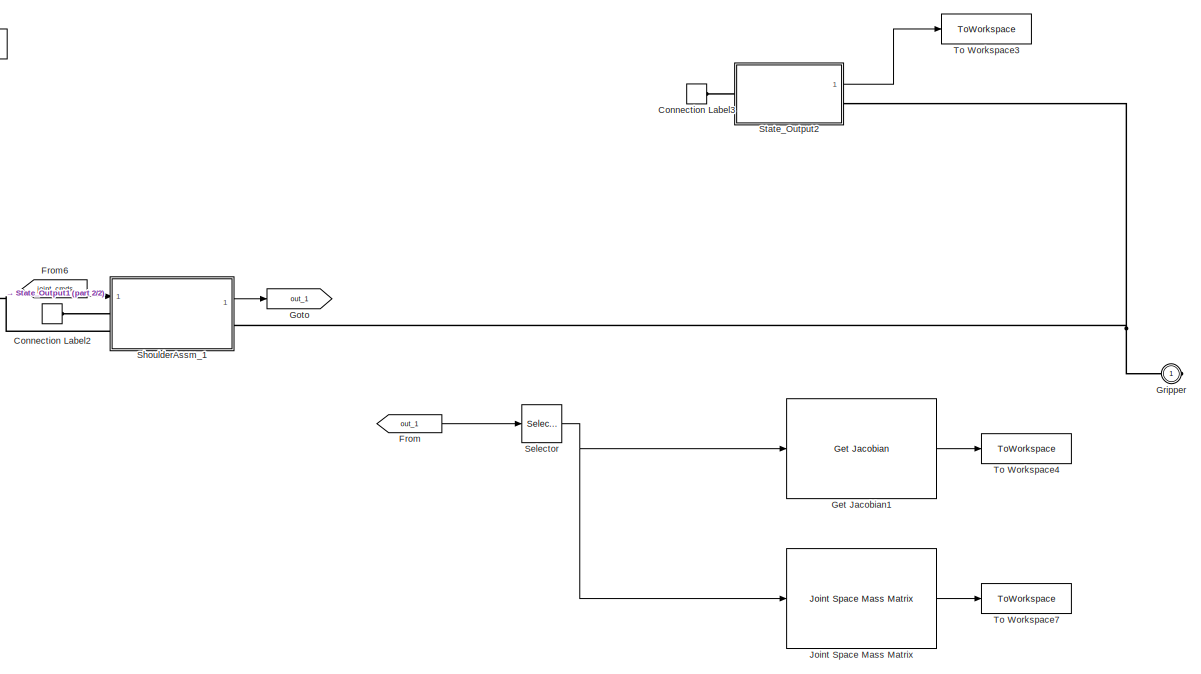
[diagram: root canvas - part 1/2, center side, full height]
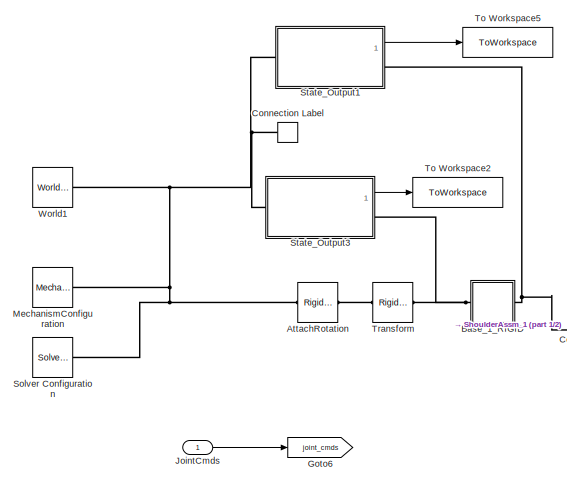
[diagram: root canvas - part 2/2, middle left region]
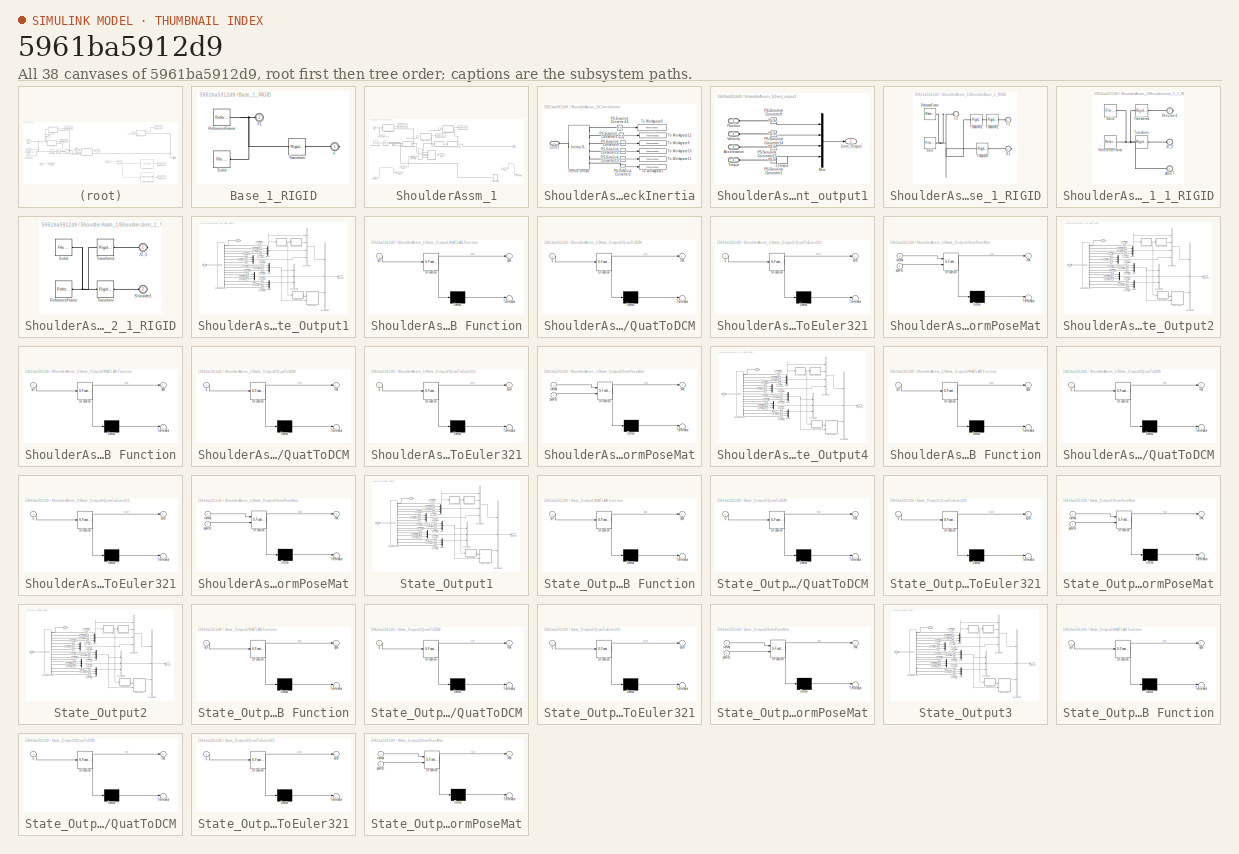
[diagram: thumbnail index - all 38 canvases of the model, root first then tree order]
MODEL slx_5961ba5912d9
KIND model
CONFIG AbsTol = auto
CONFIG EnableMultiTasking = off
CONFIG FixedStep = auto
CONFIG MaxStep = auto
CONFIG MinStep = auto
CONFIG RelTol = 1e-3
CONFIG SampleTimeConstraint = Unconstrained
CONFIG SolverName = VariableStepAuto
CONFIG StartTime = 0.0
CONFIG StopTime = 10.0
BLOCK [Reference] AttachRotation  REF=sm_lib/Frames and
Transforms/Rigid
Transform
  Ports = [0, 0, 0, 0, 0, 1, 1]
  SourceBlock = sm_lib/Frames and\nTransforms/Rigid\nTransform
  SourceProductBaseCode = MS
  SourceType = Rigid\nTransform
BLOCK [SubSystem] Base_1_RIGID
  Ports = [0, 0, 0, 0, 0, 1, 1]
  RequestExecContextInheritance = off
BLOCK [PMIOPort] Base_1_RIGID/F
  Side = Right
BLOCK [PMIOPort] Base_1_RIGID/F1
  Port = 2
  Side = Left
BLOCK [Reference] Base_1_RIGID/ReferenceFrame  REF=sm_lib/Frames and
Transforms/Reference
Frame
  Ports = [0, 0, 0, 0, 0, 0, 1]
  SourceBlock = sm_lib/Frames and\nTransforms/Reference\nFrame
  SourceProductBaseCode = MS
  SourceType = Reference\nFrame
BLOCK [Reference] Base_1_RIGID/Solid  REF=sm_lib/Body Elements/File Solid
  Ports = [0, 0, 0, 0, 0, 0, 1]
  SourceBlock = sm_lib/Body Elements/File Solid
  SourceProductBaseCode = MS
  SourceType = File Solid
BLOCK [Reference] Base_1_RIGID/Transform  REF=sm_lib/Frames and
Transforms/Rigid
Transform
  Ports = [0, 0, 0, 0, 0, 1, 1]
  SourceBlock = sm_lib/Frames and\nTransforms/Rigid\nTransform
  SourceProductBaseCode = MS
  SourceType = Rigid\nTransform
BLOCK [ConnectionLabel] Connection Label
  Label = World
  Ports = [0, 0, 0, 0, 0, 1]
BLOCK [ConnectionLabel] Connection Label2
  Label = World
  Ports = [0, 0, 0, 0, 0, 1]
BLOCK [ConnectionLabel] Connection Label3
  Label = World
  Ports = [0, 0, 0, 0, 0, 1]
BLOCK [From] From
  GotoTag = out_1
BLOCK [From] From6
  GotoTag = joint_cmds
BLOCK [Reference] Get Jacobian1  REF=robotmaniplib/Get Jacobian
  Ports = [1, 1]
  SourceBlock = robotmaniplib/Get Jacobian
  SourceProductBaseCode = RO
  SourceType = Get Jacobian
BLOCK [Goto] Goto
  GotoTag = out_1
BLOCK [Goto] Goto6
  GotoTag = joint_cmds
BLOCK [PMIOPort] Gripper
  Side = Right
BLOCK [Reference] Joint Space Mass Matrix  REF=robotmaniplib/Joint Space Mass Matrix
  Ports = [1, 1]
  SourceBlock = robotmaniplib/Joint Space Mass Matrix
  SourceProductBaseCode = RO
  SourceType = Joint Space Mass Matrix
BLOCK [Inport] JointCmds
BLOCK [Reference] MechanismConfiguration  REF=sm_lib/Utilities/Mechanism
Configuration
  Ports = [0, 0, 0, 0, 0, 0, 1]
  SourceBlock = sm_lib/Utilities/Mechanism\nConfiguration
  SourceProductBaseCode = MS
  SourceType = Mechanism\nConfiguration
BLOCK [Selector] Selector
  IndexOptions = Index vector (dialog)
  Indices = [1]
  InputPortWidth = 4
  OutputSizes = 1
  Ports = [1, 1]
BLOCK [SubSystem] ShoulderAssm_1
  Ports = [1, 1, 0, 0, 0, 2, 1]
  RequestExecContextInheritance = off
BLOCK [SubSystem] ShoulderAssm_1/CheckInertia
  Ports = [0, 0, 0, 0, 0, 1]
  RequestExecContextInheritance = off
BLOCK [PMIOPort] ShoulderAssm_1/CheckInertia/Conn1
  Side = Left
BLOCK [Reference] ShoulderAssm_1/CheckInertia/Inertia Sensor  REF=sm_lib/Body Elements/Inertia Sensor
  Ports = [0, 0, 0, 0, 0, 1, 6]
  SourceBlock = sm_lib/Body Elements/Inertia Sensor
  SourceProductBaseCode = MS
  SourceType = Inertia Sensor
BLOCK [Reference] ShoulderAssm_1/CheckInertia/PS-Simulink Converter1  REF=nesl_utility/PS-Simulink
Converter
  Ports = [0, 1, 0, 0, 0, 1]
  SourceBlock = nesl_utility/PS-Simulink\nConverter
  SourceProductBaseCode = SS,PW,VE
  SourceType = PS-Simulink\nConverter
BLOCK [Reference] ShoulderAssm_1/CheckInertia/PS-Simulink Converter13  REF=nesl_utility/PS-Simulink
Converter
  Ports = [0, 1, 0, 0, 0, 1]
  SourceBlock = nesl_utility/PS-Simulink\nConverter
  SourceProductBaseCode = SS,PW,VE
  SourceType = PS-Simulink\nConverter
BLOCK [Reference] ShoulderAssm_1/CheckInertia/PS-Simulink Converter14  REF=nesl_utility/PS-Simulink
Converter
  Ports = [0, 1, 0, 0, 0, 1]
  SourceBlock = nesl_utility/PS-Simulink\nConverter
  SourceProductBaseCode = SS,PW,VE
  SourceType = PS-Simulink\nConverter
BLOCK [Reference] ShoulderAssm_1/CheckInertia/PS-Simulink Converter16  REF=nesl_utility/PS-Simulink
Converter
  Ports = [0, 1, 0, 0, 0, 1]
  SourceBlock = nesl_utility/PS-Simulink\nConverter
  SourceProductBaseCode = SS,PW,VE
  SourceType = PS-Simulink\nConverter
BLOCK [Reference] ShoulderAssm_1/CheckInertia/PS-Simulink Converter2  REF=nesl_utility/PS-Simulink
Converter
  Ports = [0, 1, 0, 0, 0, 1]
  SourceBlock = nesl_utility/PS-Simulink\nConverter
  SourceProductBaseCode = SS,PW,VE
  SourceType = PS-Simulink\nConverter
BLOCK [Reference] ShoulderAssm_1/CheckInertia/PS-Simulink Converter9  REF=nesl_utility/PS-Simulink
Converter
  Ports = [0, 1, 0, 0, 0, 1]
  SourceBlock = nesl_utility/PS-Simulink\nConverter
  SourceProductBaseCode = SS,PW,VE
  SourceType = PS-Simulink\nConverter
BLOCK [ToWorkspace] ShoulderAssm_1/CheckInertia/To Workspace1
  FixptAsFi = on
  MaxDataPoints = inf
  Ports = [1]
  SampleTime = -1
  SaveFormat = Timeseries
  VariableName = rot
BLOCK [ToWorkspace] ShoulderAssm_1/CheckInertia/To Workspace10
  FixptAsFi = on
  MaxDataPoints = inf
  Ports = [1]
  SampleTime = -1
  SaveFormat = Timeseries
  VariableName = i2
BLOCK [ToWorkspace] ShoulderAssm_1/CheckInertia/To Workspace11
  FixptAsFi = on
  MaxDataPoints = inf
  Ports = [1]
  SampleTime = -1
  SaveFormat = Timeseries
  VariableName = i3
BLOCK [ToWorkspace] ShoulderAssm_1/CheckInertia/To Workspace12
  FixptAsFi = on
  MaxDataPoints = inf
  Ports = [1]
  SampleTime = -1
  SaveFormat = Timeseries
  VariableName = cg
BLOCK [ToWorkspace] ShoulderAssm_1/CheckInertia/To Workspace8
  FixptAsFi = on
  MaxDataPoints = inf
  Ports = [1]
  SampleTime = -1
  SaveFormat = Timeseries
  VariableName = mass
BLOCK [ToWorkspace] ShoulderAssm_1/CheckInertia/To Workspace9
  FixptAsFi = on
  MaxDataPoints = inf
  Ports = [1]
  SampleTime = -1
  SaveFormat = Timeseries
  VariableName = i1
BLOCK [ConnectionLabel] ShoulderAssm_1/Connection Label
  Label = World
  Ports = [0, 0, 0, 0, 0, 1]
BLOCK [ConnectionLabel] ShoulderAssm_1/Connection Label2
  Label = World
  Ports = [0, 0, 0, 0, 0, 1]
BLOCK [ConnectionLabel] ShoulderAssm_1/Connection Label3
  Label = World
  Ports = [0, 0, 0, 0, 0, 1]
BLOCK [PMIOPort] ShoulderAssm_1/F
  Port = 3
  Side = Left
BLOCK [From] ShoulderAssm_1/From
  GotoTag = joint_out_1
BLOCK [From] ShoulderAssm_1/From6
  GotoTag = joint_cmd_1
BLOCK [Goto] ShoulderAssm_1/Goto
  GotoTag = joint_out_1
BLOCK [Goto] ShoulderAssm_1/Goto6
  GotoTag = joint_cmd_1
BLOCK [PMIOPort] ShoulderAssm_1/J3_2
  Port = 2
  Side = Right
BLOCK [Inport] ShoulderAssm_1/JointCmds
BLOCK [Reference] ShoulderAssm_1/Joint_1  REF=sm_lib/Joints/Revolute Joint
  Ports = [0, 0, 0, 0, 0, 2, 5]
  SourceBlock = sm_lib/Joints/Revolute Joint
  SourceProductBaseCode = MS
  SourceType = Revolute Joint
BLOCK [SubSystem] ShoulderAssm_1/Joint_output1
  Ports = [0, 1, 0, 0, 0, 4]
  RequestExecContextInheritance = off
BLOCK [PMIOPort] ShoulderAssm_1/Joint_output1/Acceleration
  Port = 3
  Side = Left
BLOCK [Outport] ShoulderAssm_1/Joint_output1/Joint_Output
BLOCK [Mux] ShoulderAssm_1/Joint_output1/Mux
  DisplayOption = bar
  Ports = [4, 1]
BLOCK [Reference] ShoulderAssm_1/Joint_output1/PS-Simulink Converter1  REF=nesl_utility/PS-Simulink
Converter
  Ports = [0, 1, 0, 0, 0, 1]
  SourceBlock = nesl_utility/PS-Simulink\nConverter
  SourceProductBaseCode = SS,PW,VE
  SourceType = PS-Simulink\nConverter
BLOCK [Reference] ShoulderAssm_1/Joint_output1/PS-Simulink Converter13  REF=nesl_utility/PS-Simulink
Converter
  Ports = [0, 1, 0, 0, 0, 1]
  SourceBlock = nesl_utility/PS-Simulink\nConverter
  SourceProductBaseCode = SS,PW,VE
  SourceType = PS-Simulink\nConverter
BLOCK [Reference] ShoulderAssm_1/Joint_output1/PS-Simulink Converter14  REF=nesl_utility/PS-Simulink
Converter
  Ports = [0, 1, 0, 0, 0, 1]
  SourceBlock = nesl_utility/PS-Simulink\nConverter
  SourceProductBaseCode = SS,PW,VE
  SourceType = PS-Simulink\nConverter
BLOCK [Reference] ShoulderAssm_1/Joint_output1/PS-Simulink Converter9  REF=nesl_utility/PS-Simulink
Converter
  Ports = [0, 1, 0, 0, 0, 1]
  SourceBlock = nesl_utility/PS-Simulink\nConverter
  SourceProductBaseCode = SS,PW,VE
  SourceType = PS-Simulink\nConverter
BLOCK [PMIOPort] ShoulderAssm_1/Joint_output1/Position
  Side = Left
BLOCK [PMIOPort] ShoulderAssm_1/Joint_output1/Torque
  Port = 4
  Side = Left
BLOCK [PMIOPort] ShoulderAssm_1/Joint_output1/Velocity
  Port = 2
  Side = Left
BLOCK [Selector] ShoulderAssm_1/Joint_output1/zTorque
  IndexOptions = Index vector (dialog)
  Indices = 3
  InputPortWidth = 3
  OutputSizes = 1
  Ports = [1, 1]
BLOCK [Reference] ShoulderAssm_1/ReferenceFrame  REF=sm_lib/Frames and
Transforms/Reference
Frame
  Ports = [0, 0, 0, 0, 0, 0, 1]
  SourceBlock = sm_lib/Frames and\nTransforms/Reference\nFrame
  SourceProductBaseCode = MS
  SourceType = Reference\nFrame
BLOCK [SubSystem] ShoulderAssm_1/ShoulderBase_1_RIGID
  Ports = [0, 0, 0, 0, 0, 2, 1]
  RequestExecContextInheritance = off
BLOCK [PMIOPort] ShoulderAssm_1/ShoulderBase_1_RIGID/F1
  Port = 2
  Side = Left
BLOCK [PMIOPort] ShoulderAssm_1/ShoulderBase_1_RIGID/F2
  Side = Left
BLOCK [PMIOPort] ShoulderAssm_1/ShoulderBase_1_RIGID/J1_1
  Port = 3
  Side = Right
BLOCK [Reference] ShoulderAssm_1/ShoulderBase_1_RIGID/ReferenceFrame  REF=sm_lib/Frames and
Transforms/Reference
Frame
  Ports = [0, 0, 0, 0, 0, 0, 1]
  SourceBlock = sm_lib/Frames and\nTransforms/Reference\nFrame
  SourceProductBaseCode = MS
  SourceType = Reference\nFrame
BLOCK [Reference] ShoulderAssm_1/ShoulderBase_1_RIGID/Solid  REF=sm_lib/Body Elements/File Solid
  Ports = [0, 0, 0, 0, 0, 0, 1]
  SourceBlock = sm_lib/Body Elements/File Solid
  SourceProductBaseCode = MS
  SourceType = File Solid
BLOCK [Reference] ShoulderAssm_1/ShoulderBase_1_RIGID/Transform  REF=sm_lib/Frames and
Transforms/Rigid
Transform
  Ports = [0, 0, 0, 0, 0, 1, 1]
  SourceBlock = sm_lib/Frames and\nTransforms/Rigid\nTransform
  SourceProductBaseCode = MS
  SourceType = Rigid\nTransform
BLOCK [Reference] ShoulderAssm_1/ShoulderBase_1_RIGID/Transform1  REF=sm_lib/Frames and
Transforms/Rigid
Transform
  Ports = [0, 0, 0, 0, 0, 1, 1]
  SourceBlock = sm_lib/Frames and\nTransforms/Rigid\nTransform
  SourceProductBaseCode = MS
  SourceType = Rigid\nTransform
BLOCK [Reference] ShoulderAssm_1/ShoulderBase_1_RIGID/Transform2  REF=sm_lib/Frames and
Transforms/Rigid
Transform
  Ports = [0, 0, 0, 0, 0, 1, 1]
  SourceBlock = sm_lib/Frames and\nTransforms/Rigid\nTransform
  SourceProductBaseCode = MS
  SourceType = Rigid\nTransform
BLOCK [SubSystem] ShoulderAssm_1/ShoulderJoint_1_1_RIGID
  Ports = [0, 0, 0, 0, 0, 2, 1]
  RequestExecContextInheritance = off
BLOCK [PMIOPort] ShoulderAssm_1/ShoulderJoint_1_1_RIGID/AfterT
  Port = 3
  Side = Left
BLOCK [PMIOPort] ShoulderAssm_1/ShoulderJoint_1_1_RIGID/J1_2
  Port = 2
  Side = Left
BLOCK [Reference] ShoulderAssm_1/ShoulderJoint_1_1_RIGID/ReferenceFrame  REF=sm_lib/Frames and
Transforms/Reference
Frame
  Ports = [0, 0, 0, 0, 0, 0, 1]
  SourceBlock = sm_lib/Frames and\nTransforms/Reference\nFrame
  SourceProductBaseCode = MS
  SourceType = Reference\nFrame
BLOCK [PMIOPort] ShoulderAssm_1/ShoulderJoint_1_1_RIGID/Shoulder1
  Side = Right
BLOCK [Reference] ShoulderAssm_1/ShoulderJoint_1_1_RIGID/Solid  REF=sm_lib/Body Elements/File Solid
  Ports = [0, 0, 0, 0, 0, 0, 1]
  SourceBlock = sm_lib/Body Elements/File Solid
  SourceProductBaseCode = MS
  SourceType = File Solid
BLOCK [Reference] ShoulderAssm_1/ShoulderJoint_1_1_RIGID/Transform  REF=sm_lib/Frames and
Transforms/Rigid
Transform
  Ports = [0, 0, 0, 0, 0, 1, 1]
  SourceBlock = sm_lib/Frames and\nTransforms/Rigid\nTransform
  SourceProductBaseCode = MS
  SourceType = Rigid\nTransform
BLOCK [Reference] ShoulderAssm_1/ShoulderJoint_1_1_RIGID/Transform1  REF=sm_lib/Frames and
Transforms/Rigid
Transform
  Ports = [0, 0, 0, 0, 0, 1, 1]
  SourceBlock = sm_lib/Frames and\nTransforms/Rigid\nTransform
  SourceProductBaseCode = MS
  SourceType = Rigid\nTransform
BLOCK [SubSystem] ShoulderAssm_1/ShoulderJoint_2_1_RIGID
  Ports = [0, 0, 0, 0, 0, 1, 1]
  RequestExecContextInheritance = off
BLOCK [PMIOPort] ShoulderAssm_1/ShoulderJoint_2_1_RIGID/J2_1
  Side = Right
BLOCK [Reference] ShoulderAssm_1/ShoulderJoint_2_1_RIGID/ReferenceFrame  REF=sm_lib/Frames and
Transforms/Reference
Frame
  Ports = [0, 0, 0, 0, 0, 0, 1]
  SourceBlock = sm_lib/Frames and\nTransforms/Reference\nFrame
  SourceProductBaseCode = MS
  SourceType = Reference\nFrame
BLOCK [PMIOPort] ShoulderAssm_1/ShoulderJoint_2_1_RIGID/Shoulder1
  Port = 2
  Side = Left
BLOCK [Reference] ShoulderAssm_1/ShoulderJoint_2_1_RIGID/Solid  REF=sm_lib/Body Elements/File Solid
  Ports = [0, 0, 0, 0, 0, 0, 1]
  SourceBlock = sm_lib/Body Elements/File Solid
  SourceProductBaseCode = MS
  SourceType = File Solid
BLOCK [Reference] ShoulderAssm_1/ShoulderJoint_2_1_RIGID/Transform  REF=sm_lib/Frames and
Transforms/Rigid
Transform
  Ports = [0, 0, 0, 0, 0, 1, 1]
  SourceBlock = sm_lib/Frames and\nTransforms/Rigid\nTransform
  SourceProductBaseCode = MS
  SourceType = Rigid\nTransform
BLOCK [Reference] ShoulderAssm_1/ShoulderJoint_2_1_RIGID/Transform1  REF=sm_lib/Frames and
Transforms/Rigid
Transform
  Ports = [0, 0, 0, 0, 0, 1, 1]
  SourceBlock = sm_lib/Frames and\nTransforms/Rigid\nTransform
  SourceProductBaseCode = MS
  SourceType = Rigid\nTransform
BLOCK [Outport] ShoulderAssm_1/ShoulderOut
BLOCK [Reference] ShoulderAssm_1/Simulink-PS Converter2  REF=nesl_utility/Simulink-PS
Converter
  Ports = [1, 0, 0, 0, 0, 0, 1]
  SourceBlock = nesl_utility/Simulink-PS\nConverter
  SourceProductBaseCode = SS,PW,VE
  SourceType = Simulink-PS\nConverter
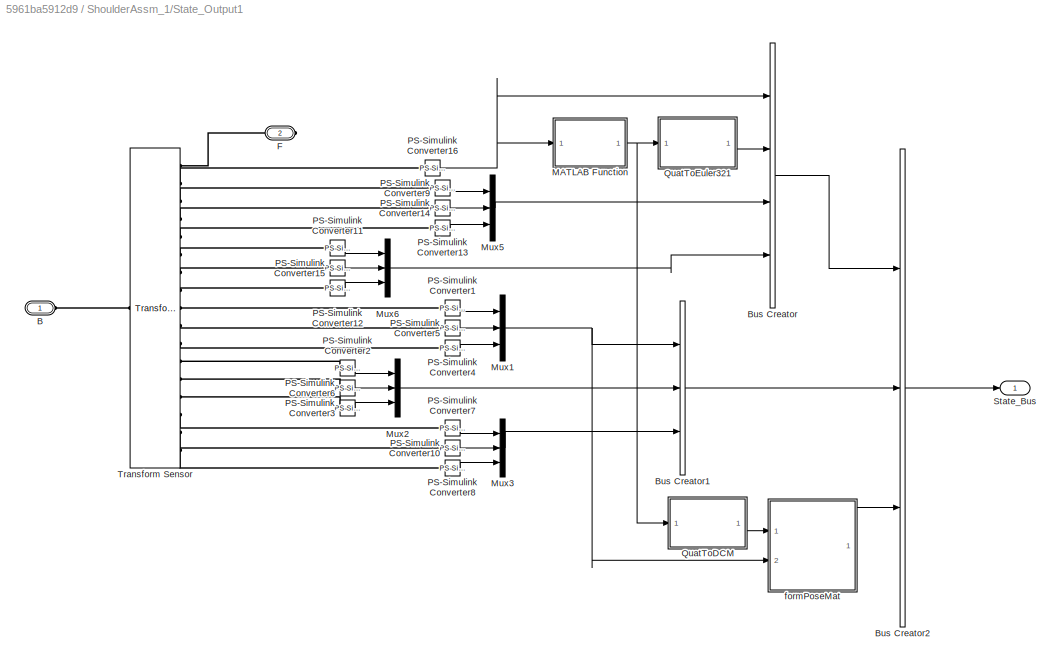
BLOCK [SubSystem] ShoulderAssm_1/State_Output1
  Ports = [0, 1, 0, 0, 0, 1, 1]
  RequestExecContextInheritance = off
BLOCK [PMIOPort] ShoulderAssm_1/State_Output1/B
  Side = Left
BLOCK [BusCreator] ShoulderAssm_1/State_Output1/Bus Creator
  DisplayOption = bar
  InheritFromInputs = off
  Inputs = 4
  OutDataTypeStr = Bus: RotStateBus
  Ports = [4, 1]
BLOCK [BusCreator] ShoulderAssm_1/State_Output1/Bus Creator1
  DisplayOption = bar
  InheritFromInputs = off
  Inputs = 3
  OutDataTypeStr = Bus: TransStateBus
  Ports = [3, 1]
BLOCK [BusCreator] ShoulderAssm_1/State_Output1/Bus Creator2
  DisplayOption = bar
  InheritFromInputs = off
  Inputs = 3
  OutDataTypeStr = Bus: StateBus
  Ports = [3, 1]
BLOCK [PMIOPort] ShoulderAssm_1/State_Output1/F
  Port = 2
  Side = Right
BLOCK [SubSystem] ShoulderAssm_1/State_Output1/MATLAB Function
  ErrorFcn = Stateflow.Translate.translate
  PermitHierarchicalResolution = ExplicitOnly
  Ports = [1, 1]
  RequestExecContextInheritance = off
  SFBlockType = MATLAB Function
  TreatAsAtomicUnit = on
BLOCK [Demux] ShoulderAssm_1/State_Output1/MATLAB Function/ Demux 
  Outputs = 1
  Ports = [1, 1]
BLOCK [S-Function] ShoulderAssm_1/State_Output1/MATLAB Function/ SFunction 
  EnableBusSupport = on
  FunctionName = sf_sfun
  PortCounts = [1 2]
  Ports = [1, 2]
  SFcnIsStateOwnerBlock = off
  SFunctionDeploymentMode = off
  Tag = Stateflow S-Function 95
BLOCK [Terminator] ShoulderAssm_1/State_Output1/MATLAB Function/ Terminator 
BLOCK [Inport] ShoulderAssm_1/State_Output1/MATLAB Function/qin
BLOCK [Outport] ShoulderAssm_1/State_Output1/MATLAB Function/qout
BLOCK [Mux] ShoulderAssm_1/State_Output1/Mux1
  DisplayOption = bar
  Inputs = 3
  Ports = [3, 1]
BLOCK [Mux] ShoulderAssm_1/State_Output1/Mux2
  DisplayOption = bar
  Inputs = 3
  Ports = [3, 1]
BLOCK [Mux] ShoulderAssm_1/State_Output1/Mux3
  DisplayOption = bar
  Inputs = 3
  Ports = [3, 1]
BLOCK [Mux] ShoulderAssm_1/State_Output1/Mux5
  DisplayOption = bar
  Inputs = 3
  Ports = [3, 1]
BLOCK [Mux] ShoulderAssm_1/State_Output1/Mux6
  DisplayOption = bar
  Inputs = 3
  Ports = [3, 1]
BLOCK [Reference] ShoulderAssm_1/State_Output1/PS-Simulink Converter1  REF=nesl_utility/PS-Simulink
Converter
  Ports = [0, 1, 0, 0, 0, 1]
  SourceBlock = nesl_utility/PS-Simulink\nConverter
  SourceProductBaseCode = SS,PW,VE
  SourceType = PS-Simulink\nConverter
BLOCK [Reference] ShoulderAssm_1/State_Output1/PS-Simulink Converter10  REF=nesl_utility/PS-Simulink
Converter
  Ports = [0, 1, 0, 0, 0, 1]
  SourceBlock = nesl_utility/PS-Simulink\nConverter
  SourceProductBaseCode = SS,PW,VE
  SourceType = PS-Simulink\nConverter
BLOCK [Reference] ShoulderAssm_1/State_Output1/PS-Simulink Converter11  REF=nesl_utility/PS-Simulink
Converter
  Ports = [0, 1, 0, 0, 0, 1]
  SourceBlock = nesl_utility/PS-Simulink\nConverter
  SourceProductBaseCode = SS,PW,VE
  SourceType = PS-Simulink\nConverter
BLOCK [Reference] ShoulderAssm_1/State_Output1/PS-Simulink Converter12  REF=nesl_utility/PS-Simulink
Converter
  Ports = [0, 1, 0, 0, 0, 1]
  SourceBlock = nesl_utility/PS-Simulink\nConverter
  SourceProductBaseCode = SS,PW,VE
  SourceType = PS-Simulink\nConverter
BLOCK [Reference] ShoulderAssm_1/State_Output1/PS-Simulink Converter13  REF=nesl_utility/PS-Simulink
Converter
  Ports = [0, 1, 0, 0, 0, 1]
  SourceBlock = nesl_utility/PS-Simulink\nConverter
  SourceProductBaseCode = SS,PW,VE
  SourceType = PS-Simulink\nConverter
BLOCK [Reference] ShoulderAssm_1/State_Output1/PS-Simulink Converter14  REF=nesl_utility/PS-Simulink
Converter
  Ports = [0, 1, 0, 0, 0, 1]
  SourceBlock = nesl_utility/PS-Simulink\nConverter
  SourceProductBaseCode = SS,PW,VE
  SourceType = PS-Simulink\nConverter
BLOCK [Reference] ShoulderAssm_1/State_Output1/PS-Simulink Converter15  REF=nesl_utility/PS-Simulink
Converter
  Ports = [0, 1, 0, 0, 0, 1]
  SourceBlock = nesl_utility/PS-Simulink\nConverter
  SourceProductBaseCode = SS,PW,VE
  SourceType = PS-Simulink\nConverter
BLOCK [Reference] ShoulderAssm_1/State_Output1/PS-Simulink Converter16  REF=nesl_utility/PS-Simulink
Converter
  Ports = [0, 1, 0, 0, 0, 1]
  SourceBlock = nesl_utility/PS-Simulink\nConverter
  SourceProductBaseCode = SS,PW,VE
  SourceType = PS-Simulink\nConverter
BLOCK [Reference] ShoulderAssm_1/State_Output1/PS-Simulink Converter2  REF=nesl_utility/PS-Simulink
Converter
  Ports = [0, 1, 0, 0, 0, 1]
  SourceBlock = nesl_utility/PS-Simulink\nConverter
  SourceProductBaseCode = SS,PW,VE
  SourceType = PS-Simulink\nConverter
BLOCK [Reference] ShoulderAssm_1/State_Output1/PS-Simulink Converter3  REF=nesl_utility/PS-Simulink
Converter
  Ports = [0, 1, 0, 0, 0, 1]
  SourceBlock = nesl_utility/PS-Simulink\nConverter
  SourceProductBaseCode = SS,PW,VE
  SourceType = PS-Simulink\nConverter
BLOCK [Reference] ShoulderAssm_1/State_Output1/PS-Simulink Converter4  REF=nesl_utility/PS-Simulink
Converter
  Ports = [0, 1, 0, 0, 0, 1]
  SourceBlock = nesl_utility/PS-Simulink\nConverter
  SourceProductBaseCode = SS,PW,VE
  SourceType = PS-Simulink\nConverter
BLOCK [Reference] ShoulderAssm_1/State_Output1/PS-Simulink Converter5  REF=nesl_utility/PS-Simulink
Converter
  Ports = [0, 1, 0, 0, 0, 1]
  SourceBlock = nesl_utility/PS-Simulink\nConverter
  SourceProductBaseCode = SS,PW,VE
  SourceType = PS-Simulink\nConverter
BLOCK [Reference] ShoulderAssm_1/State_Output1/PS-Simulink Converter6  REF=nesl_utility/PS-Simulink
Converter
  Ports = [0, 1, 0, 0, 0, 1]
  SourceBlock = nesl_utility/PS-Simulink\nConverter
  SourceProductBaseCode = SS,PW,VE
  SourceType = PS-Simulink\nConverter
BLOCK [Reference] ShoulderAssm_1/State_Output1/PS-Simulink Converter7  REF=nesl_utility/PS-Simulink
Converter
  Ports = [0, 1, 0, 0, 0, 1]
  SourceBlock = nesl_utility/PS-Simulink\nConverter
  SourceProductBaseCode = SS,PW,VE
  SourceType = PS-Simulink\nConverter
BLOCK [Reference] ShoulderAssm_1/State_Output1/PS-Simulink Converter8  REF=nesl_utility/PS-Simulink
Converter
  Ports = [0, 1, 0, 0, 0, 1]
  SourceBlock = nesl_utility/PS-Simulink\nConverter
  SourceProductBaseCode = SS,PW,VE
  SourceType = PS-Simulink\nConverter
BLOCK [Reference] ShoulderAssm_1/State_Output1/PS-Simulink Converter9  REF=nesl_utility/PS-Simulink
Converter
  Ports = [0, 1, 0, 0, 0, 1]
  SourceBlock = nesl_utility/PS-Simulink\nConverter
  SourceProductBaseCode = SS,PW,VE
  SourceType = PS-Simulink\nConverter
BLOCK [SubSystem] ShoulderAssm_1/State_Output1/QuatToDCM
  ErrorFcn = Stateflow.Translate.translate
  PermitHierarchicalResolution = ExplicitOnly
  Ports = [1, 1]
  RequestExecContextInheritance = off
  SFBlockType = MATLAB Function
  TreatAsAtomicUnit = on
BLOCK [Demux] ShoulderAssm_1/State_Output1/QuatToDCM/ Demux 
  Outputs = 1
  Ports = [1, 1]
BLOCK [S-Function] ShoulderAssm_1/State_Output1/QuatToDCM/ SFunction 
  EnableBusSupport = on
  FunctionName = sf_sfun
  PortCounts = [1 2]
  Ports = [1, 2]
  SFcnIsStateOwnerBlock = off
  SFunctionDeploymentMode = off
  Tag = Stateflow S-Function 96
BLOCK [Terminator] ShoulderAssm_1/State_Output1/QuatToDCM/ Terminator 
BLOCK [Outport] ShoulderAssm_1/State_Output1/QuatToDCM/mat
BLOCK [Inport] ShoulderAssm_1/State_Output1/QuatToDCM/q
BLOCK [SubSystem] ShoulderAssm_1/State_Output1/QuatToEuler321
  ErrorFcn = Stateflow.Translate.translate
  PermitHierarchicalResolution = ExplicitOnly
  Ports = [1, 1]
  RequestExecContextInheritance = off
  SFBlockType = MATLAB Function
  TreatAsAtomicUnit = on
BLOCK [Demux] ShoulderAssm_1/State_Output1/QuatToEuler321/ Demux 
  Outputs = 1
  Ports = [1, 1]
BLOCK [S-Function] ShoulderAssm_1/State_Output1/QuatToEuler321/ SFunction 
  EnableBusSupport = on
  FunctionName = sf_sfun
  PortCounts = [1 2]
  Ports = [1, 2]
  SFcnIsStateOwnerBlock = off
  SFunctionDeploymentMode = off
  Tag = Stateflow S-Function 97
BLOCK [Terminator] ShoulderAssm_1/State_Output1/QuatToEuler321/ Terminator 
BLOCK [Outport] ShoulderAssm_1/State_Output1/QuatToEuler321/euler
BLOCK [Inport] ShoulderAssm_1/State_Output1/QuatToEuler321/q
BLOCK [Outport] ShoulderAssm_1/State_Output1/State_Bus
BLOCK [Reference] ShoulderAssm_1/State_Output1/Transform Sensor  REF=sm_lib/Frames and
Transforms/Transform
Sensor
  Ports = [0, 0, 0, 0, 0, 1, 17]
  SourceBlock = sm_lib/Frames and\nTransforms/Transform\nSensor
  SourceProductBaseCode = MS
  SourceType = Transform\nSensor
BLOCK [SubSystem] ShoulderAssm_1/State_Output1/formPoseMat
  ErrorFcn = Stateflow.Translate.translate
  PermitHierarchicalResolution = ExplicitOnly
  Ports = [2, 1]
  RequestExecContextInheritance = off
  SFBlockType = MATLAB Function
  TreatAsAtomicUnit = on
BLOCK [Demux] ShoulderAssm_1/State_Output1/formPoseMat/ Demux 
  Outputs = 1
  Ports = [1, 1]
BLOCK [S-Function] ShoulderAssm_1/State_Output1/formPoseMat/ SFunction 
  EnableBusSupport = on
  FunctionName = sf_sfun
  PortCounts = [2 2]
  Ports = [2, 2]
  SFcnIsStateOwnerBlock = off
  SFunctionDeploymentMode = off
  Tag = Stateflow S-Function 98
BLOCK [Terminator] ShoulderAssm_1/State_Output1/formPoseMat/ Terminator 
BLOCK [Outport] ShoulderAssm_1/State_Output1/formPoseMat/mat
BLOCK [Inport] ShoulderAssm_1/State_Output1/formPoseMat/posVec
  Port = 2
BLOCK [Inport] ShoulderAssm_1/State_Output1/formPoseMat/rotMat
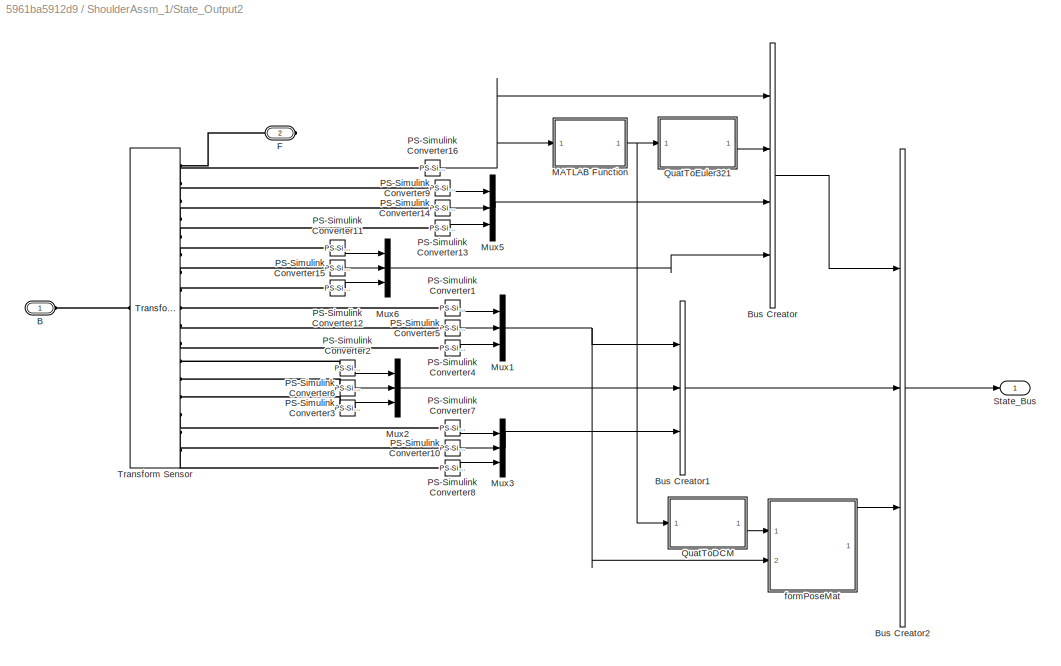
BLOCK [SubSystem] ShoulderAssm_1/State_Output2
  Ports = [0, 1, 0, 0, 0, 1, 1]
  RequestExecContextInheritance = off
BLOCK [PMIOPort] ShoulderAssm_1/State_Output2/B
  Side = Left
BLOCK [BusCreator] ShoulderAssm_1/State_Output2/Bus Creator
  DisplayOption = bar
  InheritFromInputs = off
  Inputs = 4
  OutDataTypeStr = Bus: RotStateBus
  Ports = [4, 1]
BLOCK [BusCreator] ShoulderAssm_1/State_Output2/Bus Creator1
  DisplayOption = bar
  InheritFromInputs = off
  Inputs = 3
  OutDataTypeStr = Bus: TransStateBus
  Ports = [3, 1]
BLOCK [BusCreator] ShoulderAssm_1/State_Output2/Bus Creator2
  DisplayOption = bar
  InheritFromInputs = off
  Inputs = 3
  OutDataTypeStr = Bus: StateBus
  Ports = [3, 1]
BLOCK [PMIOPort] ShoulderAssm_1/State_Output2/F
  Port = 2
  Side = Right
BLOCK [SubSystem] ShoulderAssm_1/State_Output2/MATLAB Function
  ErrorFcn = Stateflow.Translate.translate
  PermitHierarchicalResolution = ExplicitOnly
  Ports = [1, 1]
  RequestExecContextInheritance = off
  SFBlockType = MATLAB Function
  TreatAsAtomicUnit = on
BLOCK [Demux] ShoulderAssm_1/State_Output2/MATLAB Function/ Demux 
  Outputs = 1
  Ports = [1, 1]
BLOCK [S-Function] ShoulderAssm_1/State_Output2/MATLAB Function/ SFunction 
  EnableBusSupport = on
  FunctionName = sf_sfun
  PortCounts = [1 2]
  Ports = [1, 2]
  SFcnIsStateOwnerBlock = off
  SFunctionDeploymentMode = off
  Tag = Stateflow S-Function 99
BLOCK [Terminator] ShoulderAssm_1/State_Output2/MATLAB Function/ Terminator 
BLOCK [Inport] ShoulderAssm_1/State_Output2/MATLAB Function/qin
BLOCK [Outport] ShoulderAssm_1/State_Output2/MATLAB Function/qout
BLOCK [Mux] ShoulderAssm_1/State_Output2/Mux1
  DisplayOption = bar
  Inputs = 3
  Ports = [3, 1]
BLOCK [Mux] ShoulderAssm_1/State_Output2/Mux2
  DisplayOption = bar
  Inputs = 3
  Ports = [3, 1]
BLOCK [Mux] ShoulderAssm_1/State_Output2/Mux3
  DisplayOption = bar
  Inputs = 3
  Ports = [3, 1]
BLOCK [Mux] ShoulderAssm_1/State_Output2/Mux5
  DisplayOption = bar
  Inputs = 3
  Ports = [3, 1]
BLOCK [Mux] ShoulderAssm_1/State_Output2/Mux6
  DisplayOption = bar
  Inputs = 3
  Ports = [3, 1]
BLOCK [Reference] ShoulderAssm_1/State_Output2/PS-Simulink Converter1  REF=nesl_utility/PS-Simulink
Converter
  Ports = [0, 1, 0, 0, 0, 1]
  SourceBlock = nesl_utility/PS-Simulink\nConverter
  SourceProductBaseCode = SS,PW,VE
  SourceType = PS-Simulink\nConverter
BLOCK [Reference] ShoulderAssm_1/State_Output2/PS-Simulink Converter10  REF=nesl_utility/PS-Simulink
Converter
  Ports = [0, 1, 0, 0, 0, 1]
  SourceBlock = nesl_utility/PS-Simulink\nConverter
  SourceProductBaseCode = SS,PW,VE
  SourceType = PS-Simulink\nConverter
BLOCK [Reference] ShoulderAssm_1/State_Output2/PS-Simulink Converter11  REF=nesl_utility/PS-Simulink
Converter
  Ports = [0, 1, 0, 0, 0, 1]
  SourceBlock = nesl_utility/PS-Simulink\nConverter
  SourceProductBaseCode = SS,PW,VE
  SourceType = PS-Simulink\nConverter
BLOCK [Reference] ShoulderAssm_1/State_Output2/PS-Simulink Converter12  REF=nesl_utility/PS-Simulink
Converter
  Ports = [0, 1, 0, 0, 0, 1]
  SourceBlock = nesl_utility/PS-Simulink\nConverter
  SourceProductBaseCode = SS,PW,VE
  SourceType = PS-Simulink\nConverter
BLOCK [Reference] ShoulderAssm_1/State_Output2/PS-Simulink Converter13  REF=nesl_utility/PS-Simulink
Converter
  Ports = [0, 1, 0, 0, 0, 1]
  SourceBlock = nesl_utility/PS-Simulink\nConverter
  SourceProductBaseCode = SS,PW,VE
  SourceType = PS-Simulink\nConverter
BLOCK [Reference] ShoulderAssm_1/State_Output2/PS-Simulink Converter14  REF=nesl_utility/PS-Simulink
Converter
  Ports = [0, 1, 0, 0, 0, 1]
  SourceBlock = nesl_utility/PS-Simulink\nConverter
  SourceProductBaseCode = SS,PW,VE
  SourceType = PS-Simulink\nConverter
BLOCK [Reference] ShoulderAssm_1/State_Output2/PS-Simulink Converter15  REF=nesl_utility/PS-Simulink
Converter
  Ports = [0, 1, 0, 0, 0, 1]
  SourceBlock = nesl_utility/PS-Simulink\nConverter
  SourceProductBaseCode = SS,PW,VE
  SourceType = PS-Simulink\nConverter
BLOCK [Reference] ShoulderAssm_1/State_Output2/PS-Simulink Converter16  REF=nesl_utility/PS-Simulink
Converter
  Ports = [0, 1, 0, 0, 0, 1]
  SourceBlock = nesl_utility/PS-Simulink\nConverter
  SourceProductBaseCode = SS,PW,VE
  SourceType = PS-Simulink\nConverter
BLOCK [Reference] ShoulderAssm_1/State_Output2/PS-Simulink Converter2  REF=nesl_utility/PS-Simulink
Converter
  Ports = [0, 1, 0, 0, 0, 1]
  SourceBlock = nesl_utility/PS-Simulink\nConverter
  SourceProductBaseCode = SS,PW,VE
  SourceType = PS-Simulink\nConverter
BLOCK [Reference] ShoulderAssm_1/State_Output2/PS-Simulink Converter3  REF=nesl_utility/PS-Simulink
Converter
  Ports = [0, 1, 0, 0, 0, 1]
  SourceBlock = nesl_utility/PS-Simulink\nConverter
  SourceProductBaseCode = SS,PW,VE
  SourceType = PS-Simulink\nConverter
BLOCK [Reference] ShoulderAssm_1/State_Output2/PS-Simulink Converter4  REF=nesl_utility/PS-Simulink
Converter
  Ports = [0, 1, 0, 0, 0, 1]
  SourceBlock = nesl_utility/PS-Simulink\nConverter
  SourceProductBaseCode = SS,PW,VE
  SourceType = PS-Simulink\nConverter
BLOCK [Reference] ShoulderAssm_1/State_Output2/PS-Simulink Converter5  REF=nesl_utility/PS-Simulink
Converter
  Ports = [0, 1, 0, 0, 0, 1]
  SourceBlock = nesl_utility/PS-Simulink\nConverter
  SourceProductBaseCode = SS,PW,VE
  SourceType = PS-Simulink\nConverter
BLOCK [Reference] ShoulderAssm_1/State_Output2/PS-Simulink Converter6  REF=nesl_utility/PS-Simulink
Converter
  Ports = [0, 1, 0, 0, 0, 1]
  SourceBlock = nesl_utility/PS-Simulink\nConverter
  SourceProductBaseCode = SS,PW,VE
  SourceType = PS-Simulink\nConverter
BLOCK [Reference] ShoulderAssm_1/State_Output2/PS-Simulink Converter7  REF=nesl_utility/PS-Simulink
Converter
  Ports = [0, 1, 0, 0, 0, 1]
  SourceBlock = nesl_utility/PS-Simulink\nConverter
  SourceProductBaseCode = SS,PW,VE
  SourceType = PS-Simulink\nConverter
BLOCK [Reference] ShoulderAssm_1/State_Output2/PS-Simulink Converter8  REF=nesl_utility/PS-Simulink
Converter
  Ports = [0, 1, 0, 0, 0, 1]
  SourceBlock = nesl_utility/PS-Simulink\nConverter
  SourceProductBaseCode = SS,PW,VE
  SourceType = PS-Simulink\nConverter
BLOCK [Reference] ShoulderAssm_1/State_Output2/PS-Simulink Converter9  REF=nesl_utility/PS-Simulink
Converter
  Ports = [0, 1, 0, 0, 0, 1]
  SourceBlock = nesl_utility/PS-Simulink\nConverter
  SourceProductBaseCode = SS,PW,VE
  SourceType = PS-Simulink\nConverter
BLOCK [SubSystem] ShoulderAssm_1/State_Output2/QuatToDCM
  ErrorFcn = Stateflow.Translate.translate
  PermitHierarchicalResolution = ExplicitOnly
  Ports = [1, 1]
  RequestExecContextInheritance = off
  SFBlockType = MATLAB Function
  TreatAsAtomicUnit = on
BLOCK [Demux] ShoulderAssm_1/State_Output2/QuatToDCM/ Demux 
  Outputs = 1
  Ports = [1, 1]
BLOCK [S-Function] ShoulderAssm_1/State_Output2/QuatToDCM/ SFunction 
  EnableBusSupport = on
  FunctionName = sf_sfun
  PortCounts = [1 2]
  Ports = [1, 2]
  SFcnIsStateOwnerBlock = off
  SFunctionDeploymentMode = off
  Tag = Stateflow S-Function 106
BLOCK [Terminator] ShoulderAssm_1/State_Output2/QuatToDCM/ Terminator 
BLOCK [Outport] ShoulderAssm_1/State_Output2/QuatToDCM/mat
BLOCK [Inport] ShoulderAssm_1/State_Output2/QuatToDCM/q
BLOCK [SubSystem] ShoulderAssm_1/State_Output2/QuatToEuler321
  ErrorFcn = Stateflow.Translate.translate
  PermitHierarchicalResolution = ExplicitOnly
  Ports = [1, 1]
  RequestExecContextInheritance = off
  SFBlockType = MATLAB Function
  TreatAsAtomicUnit = on
BLOCK [Demux] ShoulderAssm_1/State_Output2/QuatToEuler321/ Demux 
  Outputs = 1
  Ports = [1, 1]
BLOCK [S-Function] ShoulderAssm_1/State_Output2/QuatToEuler321/ SFunction 
  EnableBusSupport = on
  FunctionName = sf_sfun
  PortCounts = [1 2]
  Ports = [1, 2]
  SFcnIsStateOwnerBlock = off
  SFunctionDeploymentMode = off
  Tag = Stateflow S-Function 107
BLOCK [Terminator] ShoulderAssm_1/State_Output2/QuatToEuler321/ Terminator 
BLOCK [Outport] ShoulderAssm_1/State_Output2/QuatToEuler321/euler
BLOCK [Inport] ShoulderAssm_1/State_Output2/QuatToEuler321/q
BLOCK [Outport] ShoulderAssm_1/State_Output2/State_Bus
BLOCK [Reference] ShoulderAssm_1/State_Output2/Transform Sensor  REF=sm_lib/Frames and
Transforms/Transform
Sensor
  Ports = [0, 0, 0, 0, 0, 1, 17]
  SourceBlock = sm_lib/Frames and\nTransforms/Transform\nSensor
  SourceProductBaseCode = MS
  SourceType = Transform\nSensor
BLOCK [SubSystem] ShoulderAssm_1/State_Output2/formPoseMat
  ErrorFcn = Stateflow.Translate.translate
  PermitHierarchicalResolution = ExplicitOnly
  Ports = [2, 1]
  RequestExecContextInheritance = off
  SFBlockType = MATLAB Function
  TreatAsAtomicUnit = on
BLOCK [Demux] ShoulderAssm_1/State_Output2/formPoseMat/ Demux 
  Outputs = 1
  Ports = [1, 1]
BLOCK [S-Function] ShoulderAssm_1/State_Output2/formPoseMat/ SFunction 
  EnableBusSupport = on
  FunctionName = sf_sfun
  PortCounts = [2 2]
  Ports = [2, 2]
  SFcnIsStateOwnerBlock = off
  SFunctionDeploymentMode = off
  Tag = Stateflow S-Function 108
BLOCK [Terminator] ShoulderAssm_1/State_Output2/formPoseMat/ Terminator 
BLOCK [Outport] ShoulderAssm_1/State_Output2/formPoseMat/mat
BLOCK [Inport] ShoulderAssm_1/State_Output2/formPoseMat/posVec
  Port = 2
BLOCK [Inport] ShoulderAssm_1/State_Output2/formPoseMat/rotMat
BLOCK [SubSystem] ShoulderAssm_1/State_Output4
  Ports = [0, 1, 0, 0, 0, 1, 1]
  RequestExecContextInheritance = off
BLOCK [PMIOPort] ShoulderAssm_1/State_Output4/B
  Side = Left
BLOCK [BusCreator] ShoulderAssm_1/State_Output4/Bus Creator
  DisplayOption = bar
  InheritFromInputs = off
  Inputs = 4
  OutDataTypeStr = Bus: RotStateBus
  Ports = [4, 1]
BLOCK [BusCreator] ShoulderAssm_1/State_Output4/Bus Creator1
  DisplayOption = bar
  InheritFromInputs = off
  Inputs = 3
  OutDataTypeStr = Bus: TransStateBus
  Ports = [3, 1]
BLOCK [BusCreator] ShoulderAssm_1/State_Output4/Bus Creator2
  DisplayOption = bar
  InheritFromInputs = off
  Inputs = 3
  OutDataTypeStr = Bus: StateBus
  Ports = [3, 1]
BLOCK [PMIOPort] ShoulderAssm_1/State_Output4/F
  Port = 2
  Side = Right
BLOCK [SubSystem] ShoulderAssm_1/State_Output4/MATLAB Function
  ErrorFcn = Stateflow.Translate.translate
  PermitHierarchicalResolution = ExplicitOnly
  Ports = [1, 1]
  RequestExecContextInheritance = off
  SFBlockType = MATLAB Function
  TreatAsAtomicUnit = on
BLOCK [Demux] ShoulderAssm_1/State_Output4/MATLAB Function/ Demux 
  Outputs = 1
  Ports = [1, 1]
BLOCK [S-Function] ShoulderAssm_1/State_Output4/MATLAB Function/ SFunction 
  EnableBusSupport = on
  FunctionName = sf_sfun
  PortCounts = [1 2]
  Ports = [1, 2]
  SFcnIsStateOwnerBlock = off
  SFunctionDeploymentMode = off
  Tag = Stateflow S-Function 133
BLOCK [Terminator] ShoulderAssm_1/State_Output4/MATLAB Function/ Terminator 
BLOCK [Inport] ShoulderAssm_1/State_Output4/MATLAB Function/qin
BLOCK [Outport] ShoulderAssm_1/State_Output4/MATLAB Function/qout
BLOCK [Mux] ShoulderAssm_1/State_Output4/Mux1
  DisplayOption = bar
  Inputs = 3
  Ports = [3, 1]
BLOCK [Mux] ShoulderAssm_1/State_Output4/Mux2
  DisplayOption = bar
  Inputs = 3
  Ports = [3, 1]
BLOCK [Mux] ShoulderAssm_1/State_Output4/Mux3
  DisplayOption = bar
  Inputs = 3
  Ports = [3, 1]
BLOCK [Mux] ShoulderAssm_1/State_Output4/Mux5
  DisplayOption = bar
  Inputs = 3
  Ports = [3, 1]
BLOCK [Mux] ShoulderAssm_1/State_Output4/Mux6
  DisplayOption = bar
  Inputs = 3
  Ports = [3, 1]
BLOCK [Reference] ShoulderAssm_1/State_Output4/PS-Simulink Converter1  REF=nesl_utility/PS-Simulink
Converter
  Ports = [0, 1, 0, 0, 0, 1]
  SourceBlock = nesl_utility/PS-Simulink\nConverter
  SourceProductBaseCode = SS,PW,VE
  SourceType = PS-Simulink\nConverter
BLOCK [Reference] ShoulderAssm_1/State_Output4/PS-Simulink Converter10  REF=nesl_utility/PS-Simulink
Converter
  Ports = [0, 1, 0, 0, 0, 1]
  SourceBlock = nesl_utility/PS-Simulink\nConverter
  SourceProductBaseCode = SS,PW,VE
  SourceType = PS-Simulink\nConverter
BLOCK [Reference] ShoulderAssm_1/State_Output4/PS-Simulink Converter11  REF=nesl_utility/PS-Simulink
Converter
  Ports = [0, 1, 0, 0, 0, 1]
  SourceBlock = nesl_utility/PS-Simulink\nConverter
  SourceProductBaseCode = SS,PW,VE
  SourceType = PS-Simulink\nConverter
BLOCK [Reference] ShoulderAssm_1/State_Output4/PS-Simulink Converter12  REF=nesl_utility/PS-Simulink
Converter
  Ports = [0, 1, 0, 0, 0, 1]
  SourceBlock = nesl_utility/PS-Simulink\nConverter
  SourceProductBaseCode = SS,PW,VE
  SourceType = PS-Simulink\nConverter
BLOCK [Reference] ShoulderAssm_1/State_Output4/PS-Simulink Converter13  REF=nesl_utility/PS-Simulink
Converter
  Ports = [0, 1, 0, 0, 0, 1]
  SourceBlock = nesl_utility/PS-Simulink\nConverter
  SourceProductBaseCode = SS,PW,VE
  SourceType = PS-Simulink\nConverter
BLOCK [Reference] ShoulderAssm_1/State_Output4/PS-Simulink Converter14  REF=nesl_utility/PS-Simulink
Converter
  Ports = [0, 1, 0, 0, 0, 1]
  SourceBlock = nesl_utility/PS-Simulink\nConverter
  SourceProductBaseCode = SS,PW,VE
  SourceType = PS-Simulink\nConverter
BLOCK [Reference] ShoulderAssm_1/State_Output4/PS-Simulink Converter15  REF=nesl_utility/PS-Simulink
Converter
  Ports = [0, 1, 0, 0, 0, 1]
  SourceBlock = nesl_utility/PS-Simulink\nConverter
  SourceProductBaseCode = SS,PW,VE
  SourceType = PS-Simulink\nConverter
BLOCK [Reference] ShoulderAssm_1/State_Output4/PS-Simulink Converter16  REF=nesl_utility/PS-Simulink
Converter
  Ports = [0, 1, 0, 0, 0, 1]
  SourceBlock = nesl_utility/PS-Simulink\nConverter
  SourceProductBaseCode = SS,PW,VE
  SourceType = PS-Simulink\nConverter
BLOCK [Reference] ShoulderAssm_1/State_Output4/PS-Simulink Converter2  REF=nesl_utility/PS-Simulink
Converter
  Ports = [0, 1, 0, 0, 0, 1]
  SourceBlock = nesl_utility/PS-Simulink\nConverter
  SourceProductBaseCode = SS,PW,VE
  SourceType = PS-Simulink\nConverter
BLOCK [Reference] ShoulderAssm_1/State_Output4/PS-Simulink Converter3  REF=nesl_utility/PS-Simulink
Converter
  Ports = [0, 1, 0, 0, 0, 1]
  SourceBlock = nesl_utility/PS-Simulink\nConverter
  SourceProductBaseCode = SS,PW,VE
  SourceType = PS-Simulink\nConverter
BLOCK [Reference] ShoulderAssm_1/State_Output4/PS-Simulink Converter4  REF=nesl_utility/PS-Simulink
Converter
  Ports = [0, 1, 0, 0, 0, 1]
  SourceBlock = nesl_utility/PS-Simulink\nConverter
  SourceProductBaseCode = SS,PW,VE
  SourceType = PS-Simulink\nConverter
BLOCK [Reference] ShoulderAssm_1/State_Output4/PS-Simulink Converter5  REF=nesl_utility/PS-Simulink
Converter
  Ports = [0, 1, 0, 0, 0, 1]
  SourceBlock = nesl_utility/PS-Simulink\nConverter
  SourceProductBaseCode = SS,PW,VE
  SourceType = PS-Simulink\nConverter
BLOCK [Reference] ShoulderAssm_1/State_Output4/PS-Simulink Converter6  REF=nesl_utility/PS-Simulink
Converter
  Ports = [0, 1, 0, 0, 0, 1]
  SourceBlock = nesl_utility/PS-Simulink\nConverter
  SourceProductBaseCode = SS,PW,VE
  SourceType = PS-Simulink\nConverter
BLOCK [Reference] ShoulderAssm_1/State_Output4/PS-Simulink Converter7  REF=nesl_utility/PS-Simulink
Converter
  Ports = [0, 1, 0, 0, 0, 1]
  SourceBlock = nesl_utility/PS-Simulink\nConverter
  SourceProductBaseCode = SS,PW,VE
  SourceType = PS-Simulink\nConverter
BLOCK [Reference] ShoulderAssm_1/State_Output4/PS-Simulink Converter8  REF=nesl_utility/PS-Simulink
Converter
  Ports = [0, 1, 0, 0, 0, 1]
  SourceBlock = nesl_utility/PS-Simulink\nConverter
  SourceProductBaseCode = SS,PW,VE
  SourceType = PS-Simulink\nConverter
BLOCK [Reference] ShoulderAssm_1/State_Output4/PS-Simulink Converter9  REF=nesl_utility/PS-Simulink
Converter
  Ports = [0, 1, 0, 0, 0, 1]
  SourceBlock = nesl_utility/PS-Simulink\nConverter
  SourceProductBaseCode = SS,PW,VE
  SourceType = PS-Simulink\nConverter
BLOCK [SubSystem] ShoulderAssm_1/State_Output4/QuatToDCM
  ErrorFcn = Stateflow.Translate.translate
  PermitHierarchicalResolution = ExplicitOnly
  Ports = [1, 1]
  RequestExecContextInheritance = off
  SFBlockType = MATLAB Function
  TreatAsAtomicUnit = on
BLOCK [Demux] ShoulderAssm_1/State_Output4/QuatToDCM/ Demux 
  Outputs = 1
  Ports = [1, 1]
BLOCK [S-Function] ShoulderAssm_1/State_Output4/QuatToDCM/ SFunction 
  EnableBusSupport = on
  FunctionName = sf_sfun
  PortCounts = [1 2]
  Ports = [1, 2]
  SFcnIsStateOwnerBlock = off
  SFunctionDeploymentMode = off
  Tag = Stateflow S-Function 134
BLOCK [Terminator] ShoulderAssm_1/State_Output4/QuatToDCM/ Terminator 
BLOCK [Outport] ShoulderAssm_1/State_Output4/QuatToDCM/mat
BLOCK [Inport] ShoulderAssm_1/State_Output4/QuatToDCM/q
BLOCK [SubSystem] ShoulderAssm_1/State_Output4/QuatToEuler321
  ErrorFcn = Stateflow.Translate.translate
  PermitHierarchicalResolution = ExplicitOnly
  Ports = [1, 1]
  RequestExecContextInheritance = off
  SFBlockType = MATLAB Function
  TreatAsAtomicUnit = on
BLOCK [Demux] ShoulderAssm_1/State_Output4/QuatToEuler321/ Demux 
  Outputs = 1
  Ports = [1, 1]
BLOCK [S-Function] ShoulderAssm_1/State_Output4/QuatToEuler321/ SFunction 
  EnableBusSupport = on
  FunctionName = sf_sfun
  PortCounts = [1 2]
  Ports = [1, 2]
  SFcnIsStateOwnerBlock = off
  SFunctionDeploymentMode = off
  Tag = Stateflow S-Function 135
BLOCK [Terminator] ShoulderAssm_1/State_Output4/QuatToEuler321/ Terminator 
BLOCK [Outport] ShoulderAssm_1/State_Output4/QuatToEuler321/euler
BLOCK [Inport] ShoulderAssm_1/State_Output4/QuatToEuler321/q
BLOCK [Outport] ShoulderAssm_1/State_Output4/State_Bus
BLOCK [Reference] ShoulderAssm_1/State_Output4/Transform Sensor  REF=sm_lib/Frames and
Transforms/Transform
Sensor
  Ports = [0, 0, 0, 0, 0, 1, 17]
  SourceBlock = sm_lib/Frames and\nTransforms/Transform\nSensor
  SourceProductBaseCode = MS
  SourceType = Transform\nSensor
BLOCK [SubSystem] ShoulderAssm_1/State_Output4/formPoseMat
  ErrorFcn = Stateflow.Translate.translate
  PermitHierarchicalResolution = ExplicitOnly
  Ports = [2, 1]
  RequestExecContextInheritance = off
  SFBlockType = MATLAB Function
  TreatAsAtomicUnit = on
BLOCK [Demux] ShoulderAssm_1/State_Output4/formPoseMat/ Demux 
  Outputs = 1
  Ports = [1, 1]
BLOCK [S-Function] ShoulderAssm_1/State_Output4/formPoseMat/ SFunction 
  EnableBusSupport = on
  FunctionName = sf_sfun
  PortCounts = [2 2]
  Ports = [2, 2]
  SFcnIsStateOwnerBlock = off
  SFunctionDeploymentMode = off
  Tag = Stateflow S-Function 136
BLOCK [Terminator] ShoulderAssm_1/State_Output4/formPoseMat/ Terminator 
BLOCK [Outport] ShoulderAssm_1/State_Output4/formPoseMat/mat
BLOCK [Inport] ShoulderAssm_1/State_Output4/formPoseMat/posVec
  Port = 2
BLOCK [Inport] ShoulderAssm_1/State_Output4/formPoseMat/rotMat
BLOCK [ToWorkspace] ShoulderAssm_1/To Workspace1
  FixptAsFi = on
  MaxDataPoints = inf
  Ports = [1]
  SampleTime = -1
  SaveFormat = Timeseries
  VariableName = joint_2
BLOCK [ToWorkspace] ShoulderAssm_1/To Workspace2
  FixptAsFi = on
  MaxDataPoints = inf
  Ports = [1]
  SampleTime = -1
  SaveFormat = Timeseries
  VariableName = joint_1
BLOCK [ToWorkspace] ShoulderAssm_1/To Workspace4
  FixptAsFi = on
  MaxDataPoints = inf
  Ports = [1]
  SampleTime = -1
  SaveFormat = Timeseries
  VariableName = afterT
BLOCK [Reference] ShoulderAssm_1/Transform  REF=sm_lib/Frames and
Transforms/Rigid
Transform
  Ports = [0, 0, 0, 0, 0, 1, 1]
  SourceBlock = sm_lib/Frames and\nTransforms/Rigid\nTransform
  SourceProductBaseCode = MS
  SourceType = Rigid\nTransform
BLOCK [PMIOPort] ShoulderAssm_1/W
  Side = Left
BLOCK [Reference] Solver Configuration  REF=nesl_utility/Solver
Configuration
  Ports = [0, 0, 0, 0, 0, 0, 1]
  SourceBlock = nesl_utility/Solver\nConfiguration
  SourceProductBaseCode = SS,PW,VE
  SourceType = Solver\nConfiguration
BLOCK [SubSystem] State_Output1
  Ports = [0, 1, 0, 0, 0, 1, 1]
  RequestExecContextInheritance = off
BLOCK [PMIOPort] State_Output1/B
  Side = Left
BLOCK [BusCreator] State_Output1/Bus Creator
  DisplayOption = bar
  InheritFromInputs = off
  Inputs = 4
  OutDataTypeStr = Bus: RotStateBus
  Ports = [4, 1]
BLOCK [BusCreator] State_Output1/Bus Creator1
  DisplayOption = bar
  InheritFromInputs = off
  Inputs = 3
  OutDataTypeStr = Bus: TransStateBus
  Ports = [3, 1]
BLOCK [BusCreator] State_Output1/Bus Creator2
  DisplayOption = bar
  InheritFromInputs = off
  Inputs = 3
  OutDataTypeStr = Bus: StateBus
  Ports = [3, 1]
BLOCK [PMIOPort] State_Output1/F
  Port = 2
  Side = Right
BLOCK [SubSystem] State_Output1/MATLAB Function
  ErrorFcn = Stateflow.Translate.translate
  PermitHierarchicalResolution = ExplicitOnly
  Ports = [1, 1]
  RequestExecContextInheritance = off
  SFBlockType = MATLAB Function
  TreatAsAtomicUnit = on
BLOCK [Demux] State_Output1/MATLAB Function/ Demux 
  Outputs = 1
  Ports = [1, 1]
BLOCK [S-Function] State_Output1/MATLAB Function/ SFunction 
  EnableBusSupport = on
  FunctionName = sf_sfun
  PortCounts = [1 2]
  Ports = [1, 2]
  SFcnIsStateOwnerBlock = off
  SFunctionDeploymentMode = off
  Tag = Stateflow S-Function 113
BLOCK [Terminator] State_Output1/MATLAB Function/ Terminator 
BLOCK [Inport] State_Output1/MATLAB Function/qin
BLOCK [Outport] State_Output1/MATLAB Function/qout
BLOCK [Mux] State_Output1/Mux1
  DisplayOption = bar
  Inputs = 3
  Ports = [3, 1]
BLOCK [Mux] State_Output1/Mux2
  DisplayOption = bar
  Inputs = 3
  Ports = [3, 1]
BLOCK [Mux] State_Output1/Mux3
  DisplayOption = bar
  Inputs = 3
  Ports = [3, 1]
BLOCK [Mux] State_Output1/Mux5
  DisplayOption = bar
  Inputs = 3
  Ports = [3, 1]
BLOCK [Mux] State_Output1/Mux6
  DisplayOption = bar
  Inputs = 3
  Ports = [3, 1]
BLOCK [Reference] State_Output1/PS-Simulink Converter1  REF=nesl_utility/PS-Simulink
Converter
  Ports = [0, 1, 0, 0, 0, 1]
  SourceBlock = nesl_utility/PS-Simulink\nConverter
  SourceProductBaseCode = SS,PW,VE
  SourceType = PS-Simulink\nConverter
BLOCK [Reference] State_Output1/PS-Simulink Converter10  REF=nesl_utility/PS-Simulink
Converter
  Ports = [0, 1, 0, 0, 0, 1]
  SourceBlock = nesl_utility/PS-Simulink\nConverter
  SourceProductBaseCode = SS,PW,VE
  SourceType = PS-Simulink\nConverter
BLOCK [Reference] State_Output1/PS-Simulink Converter11  REF=nesl_utility/PS-Simulink
Converter
  Ports = [0, 1, 0, 0, 0, 1]
  SourceBlock = nesl_utility/PS-Simulink\nConverter
  SourceProductBaseCode = SS,PW,VE
  SourceType = PS-Simulink\nConverter
BLOCK [Reference] State_Output1/PS-Simulink Converter12  REF=nesl_utility/PS-Simulink
Converter
  Ports = [0, 1, 0, 0, 0, 1]
  SourceBlock = nesl_utility/PS-Simulink\nConverter
  SourceProductBaseCode = SS,PW,VE
  SourceType = PS-Simulink\nConverter
BLOCK [Reference] State_Output1/PS-Simulink Converter13  REF=nesl_utility/PS-Simulink
Converter
  Ports = [0, 1, 0, 0, 0, 1]
  SourceBlock = nesl_utility/PS-Simulink\nConverter
  SourceProductBaseCode = SS,PW,VE
  SourceType = PS-Simulink\nConverter
BLOCK [Reference] State_Output1/PS-Simulink Converter14  REF=nesl_utility/PS-Simulink
Converter
  Ports = [0, 1, 0, 0, 0, 1]
  SourceBlock = nesl_utility/PS-Simulink\nConverter
  SourceProductBaseCode = SS,PW,VE
  SourceType = PS-Simulink\nConverter
BLOCK [Reference] State_Output1/PS-Simulink Converter15  REF=nesl_utility/PS-Simulink
Converter
  Ports = [0, 1, 0, 0, 0, 1]
  SourceBlock = nesl_utility/PS-Simulink\nConverter
  SourceProductBaseCode = SS,PW,VE
  SourceType = PS-Simulink\nConverter
BLOCK [Reference] State_Output1/PS-Simulink Converter16  REF=nesl_utility/PS-Simulink
Converter
  Ports = [0, 1, 0, 0, 0, 1]
  SourceBlock = nesl_utility/PS-Simulink\nConverter
  SourceProductBaseCode = SS,PW,VE
  SourceType = PS-Simulink\nConverter
BLOCK [Reference] State_Output1/PS-Simulink Converter2  REF=nesl_utility/PS-Simulink
Converter
  Ports = [0, 1, 0, 0, 0, 1]
  SourceBlock = nesl_utility/PS-Simulink\nConverter
  SourceProductBaseCode = SS,PW,VE
  SourceType = PS-Simulink\nConverter
BLOCK [Reference] State_Output1/PS-Simulink Converter3  REF=nesl_utility/PS-Simulink
Converter
  Ports = [0, 1, 0, 0, 0, 1]
  SourceBlock = nesl_utility/PS-Simulink\nConverter
  SourceProductBaseCode = SS,PW,VE
  SourceType = PS-Simulink\nConverter
BLOCK [Reference] State_Output1/PS-Simulink Converter4  REF=nesl_utility/PS-Simulink
Converter
  Ports = [0, 1, 0, 0, 0, 1]
  SourceBlock = nesl_utility/PS-Simulink\nConverter
  SourceProductBaseCode = SS,PW,VE
  SourceType = PS-Simulink\nConverter
BLOCK [Reference] State_Output1/PS-Simulink Converter5  REF=nesl_utility/PS-Simulink
Converter
  Ports = [0, 1, 0, 0, 0, 1]
  SourceBlock = nesl_utility/PS-Simulink\nConverter
  SourceProductBaseCode = SS,PW,VE
  SourceType = PS-Simulink\nConverter
BLOCK [Reference] State_Output1/PS-Simulink Converter6  REF=nesl_utility/PS-Simulink
Converter
  Ports = [0, 1, 0, 0, 0, 1]
  SourceBlock = nesl_utility/PS-Simulink\nConverter
  SourceProductBaseCode = SS,PW,VE
  SourceType = PS-Simulink\nConverter
BLOCK [Reference] State_Output1/PS-Simulink Converter7  REF=nesl_utility/PS-Simulink
Converter
  Ports = [0, 1, 0, 0, 0, 1]
  SourceBlock = nesl_utility/PS-Simulink\nConverter
  SourceProductBaseCode = SS,PW,VE
  SourceType = PS-Simulink\nConverter
BLOCK [Reference] State_Output1/PS-Simulink Converter8  REF=nesl_utility/PS-Simulink
Converter
  Ports = [0, 1, 0, 0, 0, 1]
  SourceBlock = nesl_utility/PS-Simulink\nConverter
  SourceProductBaseCode = SS,PW,VE
  SourceType = PS-Simulink\nConverter
BLOCK [Reference] State_Output1/PS-Simulink Converter9  REF=nesl_utility/PS-Simulink
Converter
  Ports = [0, 1, 0, 0, 0, 1]
  SourceBlock = nesl_utility/PS-Simulink\nConverter
  SourceProductBaseCode = SS,PW,VE
  SourceType = PS-Simulink\nConverter
BLOCK [SubSystem] State_Output1/QuatToDCM
  ErrorFcn = Stateflow.Translate.translate
  PermitHierarchicalResolution = ExplicitOnly
  Ports = [1, 1]
  RequestExecContextInheritance = off
  SFBlockType = MATLAB Function
  TreatAsAtomicUnit = on
BLOCK [Demux] State_Output1/QuatToDCM/ Demux 
  Outputs = 1
  Ports = [1, 1]
BLOCK [S-Function] State_Output1/QuatToDCM/ SFunction 
  EnableBusSupport = on
  FunctionName = sf_sfun
  PortCounts = [1 2]
  Ports = [1, 2]
  SFcnIsStateOwnerBlock = off
  SFunctionDeploymentMode = off
  Tag = Stateflow S-Function 114
BLOCK [Terminator] State_Output1/QuatToDCM/ Terminator 
BLOCK [Outport] State_Output1/QuatToDCM/mat
BLOCK [Inport] State_Output1/QuatToDCM/q
BLOCK [SubSystem] State_Output1/QuatToEuler321
  ErrorFcn = Stateflow.Translate.translate
  PermitHierarchicalResolution = ExplicitOnly
  Ports = [1, 1]
  RequestExecContextInheritance = off
  SFBlockType = MATLAB Function
  TreatAsAtomicUnit = on
BLOCK [Demux] State_Output1/QuatToEuler321/ Demux 
  Outputs = 1
  Ports = [1, 1]
BLOCK [S-Function] State_Output1/QuatToEuler321/ SFunction 
  EnableBusSupport = on
  FunctionName = sf_sfun
  PortCounts = [1 2]
  Ports = [1, 2]
  SFcnIsStateOwnerBlock = off
  SFunctionDeploymentMode = off
  Tag = Stateflow S-Function 115
BLOCK [Terminator] State_Output1/QuatToEuler321/ Terminator 
BLOCK [Outport] State_Output1/QuatToEuler321/euler
BLOCK [Inport] State_Output1/QuatToEuler321/q
BLOCK [Outport] State_Output1/State_Bus
BLOCK [Reference] State_Output1/Transform Sensor  REF=sm_lib/Frames and
Transforms/Transform
Sensor
  Ports = [0, 0, 0, 0, 0, 1, 17]
  SourceBlock = sm_lib/Frames and\nTransforms/Transform\nSensor
  SourceProductBaseCode = MS
  SourceType = Transform\nSensor
BLOCK [SubSystem] State_Output1/formPoseMat
  ErrorFcn = Stateflow.Translate.translate
  PermitHierarchicalResolution = ExplicitOnly
  Ports = [2, 1]
  RequestExecContextInheritance = off
  SFBlockType = MATLAB Function
  TreatAsAtomicUnit = on
BLOCK [Demux] State_Output1/formPoseMat/ Demux 
  Outputs = 1
  Ports = [1, 1]
BLOCK [S-Function] State_Output1/formPoseMat/ SFunction 
  EnableBusSupport = on
  FunctionName = sf_sfun
  PortCounts = [2 2]
  Ports = [2, 2]
  SFcnIsStateOwnerBlock = off
  SFunctionDeploymentMode = off
  Tag = Stateflow S-Function 116
BLOCK [Terminator] State_Output1/formPoseMat/ Terminator 
BLOCK [Outport] State_Output1/formPoseMat/mat
BLOCK [Inport] State_Output1/formPoseMat/posVec
  Port = 2
BLOCK [Inport] State_Output1/formPoseMat/rotMat
BLOCK [SubSystem] State_Output2
  Ports = [0, 1, 0, 0, 0, 1, 1]
  RequestExecContextInheritance = off
BLOCK [PMIOPort] State_Output2/B
  Side = Left
BLOCK [BusCreator] State_Output2/Bus Creator
  DisplayOption = bar
  InheritFromInputs = off
  Inputs = 4
  OutDataTypeStr = Bus: RotStateBus
  Ports = [4, 1]
BLOCK [BusCreator] State_Output2/Bus Creator1
  DisplayOption = bar
  InheritFromInputs = off
  Inputs = 3
  OutDataTypeStr = Bus: TransStateBus
  Ports = [3, 1]
BLOCK [BusCreator] State_Output2/Bus Creator2
  DisplayOption = bar
  InheritFromInputs = off
  Inputs = 3
  OutDataTypeStr = Bus: StateBus
  Ports = [3, 1]
BLOCK [PMIOPort] State_Output2/F
  Port = 2
  Side = Right
BLOCK [SubSystem] State_Output2/MATLAB Function
  ErrorFcn = Stateflow.Translate.translate
  PermitHierarchicalResolution = ExplicitOnly
  Ports = [1, 1]
  RequestExecContextInheritance = off
  SFBlockType = MATLAB Function
  TreatAsAtomicUnit = on
BLOCK [Demux] State_Output2/MATLAB Function/ Demux 
  Outputs = 1
  Ports = [1, 1]
BLOCK [S-Function] State_Output2/MATLAB Function/ SFunction 
  EnableBusSupport = on
  FunctionName = sf_sfun
  PortCounts = [1 2]
  Ports = [1, 2]
  SFcnIsStateOwnerBlock = off
  SFunctionDeploymentMode = off
  Tag = Stateflow S-Function 117
BLOCK [Terminator] State_Output2/MATLAB Function/ Terminator 
BLOCK [Inport] State_Output2/MATLAB Function/qin
BLOCK [Outport] State_Output2/MATLAB Function/qout
BLOCK [Mux] State_Output2/Mux1
  DisplayOption = bar
  Inputs = 3
  Ports = [3, 1]
BLOCK [Mux] State_Output2/Mux2
  DisplayOption = bar
  Inputs = 3
  Ports = [3, 1]
BLOCK [Mux] State_Output2/Mux3
  DisplayOption = bar
  Inputs = 3
  Ports = [3, 1]
BLOCK [Mux] State_Output2/Mux5
  DisplayOption = bar
  Inputs = 3
  Ports = [3, 1]
BLOCK [Mux] State_Output2/Mux6
  DisplayOption = bar
  Inputs = 3
  Ports = [3, 1]
BLOCK [Reference] State_Output2/PS-Simulink Converter1  REF=nesl_utility/PS-Simulink
Converter
  Ports = [0, 1, 0, 0, 0, 1]
  SourceBlock = nesl_utility/PS-Simulink\nConverter
  SourceProductBaseCode = SS,PW,VE
  SourceType = PS-Simulink\nConverter
BLOCK [Reference] State_Output2/PS-Simulink Converter10  REF=nesl_utility/PS-Simulink
Converter
  Ports = [0, 1, 0, 0, 0, 1]
  SourceBlock = nesl_utility/PS-Simulink\nConverter
  SourceProductBaseCode = SS,PW,VE
  SourceType = PS-Simulink\nConverter
BLOCK [Reference] State_Output2/PS-Simulink Converter11  REF=nesl_utility/PS-Simulink
Converter
  Ports = [0, 1, 0, 0, 0, 1]
  SourceBlock = nesl_utility/PS-Simulink\nConverter
  SourceProductBaseCode = SS,PW,VE
  SourceType = PS-Simulink\nConverter
BLOCK [Reference] State_Output2/PS-Simulink Converter12  REF=nesl_utility/PS-Simulink
Converter
  Ports = [0, 1, 0, 0, 0, 1]
  SourceBlock = nesl_utility/PS-Simulink\nConverter
  SourceProductBaseCode = SS,PW,VE
  SourceType = PS-Simulink\nConverter
BLOCK [Reference] State_Output2/PS-Simulink Converter13  REF=nesl_utility/PS-Simulink
Converter
  Ports = [0, 1, 0, 0, 0, 1]
  SourceBlock = nesl_utility/PS-Simulink\nConverter
  SourceProductBaseCode = SS,PW,VE
  SourceType = PS-Simulink\nConverter
BLOCK [Reference] State_Output2/PS-Simulink Converter14  REF=nesl_utility/PS-Simulink
Converter
  Ports = [0, 1, 0, 0, 0, 1]
  SourceBlock = nesl_utility/PS-Simulink\nConverter
  SourceProductBaseCode = SS,PW,VE
  SourceType = PS-Simulink\nConverter
BLOCK [Reference] State_Output2/PS-Simulink Converter15  REF=nesl_utility/PS-Simulink
Converter
  Ports = [0, 1, 0, 0, 0, 1]
  SourceBlock = nesl_utility/PS-Simulink\nConverter
  SourceProductBaseCode = SS,PW,VE
  SourceType = PS-Simulink\nConverter
BLOCK [Reference] State_Output2/PS-Simulink Converter16  REF=nesl_utility/PS-Simulink
Converter
  Ports = [0, 1, 0, 0, 0, 1]
  SourceBlock = nesl_utility/PS-Simulink\nConverter
  SourceProductBaseCode = SS,PW,VE
  SourceType = PS-Simulink\nConverter
BLOCK [Reference] State_Output2/PS-Simulink Converter2  REF=nesl_utility/PS-Simulink
Converter
  Ports = [0, 1, 0, 0, 0, 1]
  SourceBlock = nesl_utility/PS-Simulink\nConverter
  SourceProductBaseCode = SS,PW,VE
  SourceType = PS-Simulink\nConverter
BLOCK [Reference] State_Output2/PS-Simulink Converter3  REF=nesl_utility/PS-Simulink
Converter
  Ports = [0, 1, 0, 0, 0, 1]
  SourceBlock = nesl_utility/PS-Simulink\nConverter
  SourceProductBaseCode = SS,PW,VE
  SourceType = PS-Simulink\nConverter
BLOCK [Reference] State_Output2/PS-Simulink Converter4  REF=nesl_utility/PS-Simulink
Converter
  Ports = [0, 1, 0, 0, 0, 1]
  SourceBlock = nesl_utility/PS-Simulink\nConverter
  SourceProductBaseCode = SS,PW,VE
  SourceType = PS-Simulink\nConverter
BLOCK [Reference] State_Output2/PS-Simulink Converter5  REF=nesl_utility/PS-Simulink
Converter
  Ports = [0, 1, 0, 0, 0, 1]
  SourceBlock = nesl_utility/PS-Simulink\nConverter
  SourceProductBaseCode = SS,PW,VE
  SourceType = PS-Simulink\nConverter
BLOCK [Reference] State_Output2/PS-Simulink Converter6  REF=nesl_utility/PS-Simulink
Converter
  Ports = [0, 1, 0, 0, 0, 1]
  SourceBlock = nesl_utility/PS-Simulink\nConverter
  SourceProductBaseCode = SS,PW,VE
  SourceType = PS-Simulink\nConverter
BLOCK [Reference] State_Output2/PS-Simulink Converter7  REF=nesl_utility/PS-Simulink
Converter
  Ports = [0, 1, 0, 0, 0, 1]
  SourceBlock = nesl_utility/PS-Simulink\nConverter
  SourceProductBaseCode = SS,PW,VE
  SourceType = PS-Simulink\nConverter
BLOCK [Reference] State_Output2/PS-Simulink Converter8  REF=nesl_utility/PS-Simulink
Converter
  Ports = [0, 1, 0, 0, 0, 1]
  SourceBlock = nesl_utility/PS-Simulink\nConverter
  SourceProductBaseCode = SS,PW,VE
  SourceType = PS-Simulink\nConverter
BLOCK [Reference] State_Output2/PS-Simulink Converter9  REF=nesl_utility/PS-Simulink
Converter
  Ports = [0, 1, 0, 0, 0, 1]
  SourceBlock = nesl_utility/PS-Simulink\nConverter
  SourceProductBaseCode = SS,PW,VE
  SourceType = PS-Simulink\nConverter
BLOCK [SubSystem] State_Output2/QuatToDCM
  ErrorFcn = Stateflow.Translate.translate
  PermitHierarchicalResolution = ExplicitOnly
  Ports = [1, 1]
  RequestExecContextInheritance = off
  SFBlockType = MATLAB Function
  TreatAsAtomicUnit = on
BLOCK [Demux] State_Output2/QuatToDCM/ Demux 
  Outputs = 1
  Ports = [1, 1]
BLOCK [S-Function] State_Output2/QuatToDCM/ SFunction 
  EnableBusSupport = on
  FunctionName = sf_sfun
  PortCounts = [1 2]
  Ports = [1, 2]
  SFcnIsStateOwnerBlock = off
  SFunctionDeploymentMode = off
  Tag = Stateflow S-Function 118
BLOCK [Terminator] State_Output2/QuatToDCM/ Terminator 
BLOCK [Outport] State_Output2/QuatToDCM/mat
BLOCK [Inport] State_Output2/QuatToDCM/q
BLOCK [SubSystem] State_Output2/QuatToEuler321
  ErrorFcn = Stateflow.Translate.translate
  PermitHierarchicalResolution = ExplicitOnly
  Ports = [1, 1]
  RequestExecContextInheritance = off
  SFBlockType = MATLAB Function
  TreatAsAtomicUnit = on
BLOCK [Demux] State_Output2/QuatToEuler321/ Demux 
  Outputs = 1
  Ports = [1, 1]
BLOCK [S-Function] State_Output2/QuatToEuler321/ SFunction 
  EnableBusSupport = on
  FunctionName = sf_sfun
  PortCounts = [1 2]
  Ports = [1, 2]
  SFcnIsStateOwnerBlock = off
  SFunctionDeploymentMode = off
  Tag = Stateflow S-Function 119
BLOCK [Terminator] State_Output2/QuatToEuler321/ Terminator 
BLOCK [Outport] State_Output2/QuatToEuler321/euler
BLOCK [Inport] State_Output2/QuatToEuler321/q
BLOCK [Outport] State_Output2/State_Bus
BLOCK [Reference] State_Output2/Transform Sensor  REF=sm_lib/Frames and
Transforms/Transform
Sensor
  Ports = [0, 0, 0, 0, 0, 1, 17]
  SourceBlock = sm_lib/Frames and\nTransforms/Transform\nSensor
  SourceProductBaseCode = MS
  SourceType = Transform\nSensor
BLOCK [SubSystem] State_Output2/formPoseMat
  ErrorFcn = Stateflow.Translate.translate
  PermitHierarchicalResolution = ExplicitOnly
  Ports = [2, 1]
  RequestExecContextInheritance = off
  SFBlockType = MATLAB Function
  TreatAsAtomicUnit = on
BLOCK [Demux] State_Output2/formPoseMat/ Demux 
  Outputs = 1
  Ports = [1, 1]
BLOCK [S-Function] State_Output2/formPoseMat/ SFunction 
  EnableBusSupport = on
  FunctionName = sf_sfun
  PortCounts = [2 2]
  Ports = [2, 2]
  SFcnIsStateOwnerBlock = off
  SFunctionDeploymentMode = off
  Tag = Stateflow S-Function 120
BLOCK [Terminator] State_Output2/formPoseMat/ Terminator 
BLOCK [Outport] State_Output2/formPoseMat/mat
BLOCK [Inport] State_Output2/formPoseMat/posVec
  Port = 2
BLOCK [Inport] State_Output2/formPoseMat/rotMat
BLOCK [SubSystem] State_Output3
  Ports = [0, 1, 0, 0, 0, 1, 1]
  RequestExecContextInheritance = off
BLOCK [PMIOPort] State_Output3/B
  Side = Left
BLOCK [BusCreator] State_Output3/Bus Creator
  DisplayOption = bar
  InheritFromInputs = off
  Inputs = 4
  OutDataTypeStr = Bus: RotStateBus
  Ports = [4, 1]
BLOCK [BusCreator] State_Output3/Bus Creator1
  DisplayOption = bar
  InheritFromInputs = off
  Inputs = 3
  OutDataTypeStr = Bus: TransStateBus
  Ports = [3, 1]
BLOCK [BusCreator] State_Output3/Bus Creator2
  DisplayOption = bar
  InheritFromInputs = off
  Inputs = 3
  OutDataTypeStr = Bus: StateBus
  Ports = [3, 1]
BLOCK [PMIOPort] State_Output3/F
  Port = 2
  Side = Right
BLOCK [SubSystem] State_Output3/MATLAB Function
  ErrorFcn = Stateflow.Translate.translate
  PermitHierarchicalResolution = ExplicitOnly
  Ports = [1, 1]
  RequestExecContextInheritance = off
  SFBlockType = MATLAB Function
  TreatAsAtomicUnit = on
BLOCK [Demux] State_Output3/MATLAB Function/ Demux 
  Outputs = 1
  Ports = [1, 1]
BLOCK [S-Function] State_Output3/MATLAB Function/ SFunction 
  EnableBusSupport = on
  FunctionName = sf_sfun
  PortCounts = [1 2]
  Ports = [1, 2]
  SFcnIsStateOwnerBlock = off
  SFunctionDeploymentMode = off
  Tag = Stateflow S-Function 121
BLOCK [Terminator] State_Output3/MATLAB Function/ Terminator 
BLOCK [Inport] State_Output3/MATLAB Function/qin
BLOCK [Outport] State_Output3/MATLAB Function/qout
BLOCK [Mux] State_Output3/Mux1
  DisplayOption = bar
  Inputs = 3
  Ports = [3, 1]
BLOCK [Mux] State_Output3/Mux2
  DisplayOption = bar
  Inputs = 3
  Ports = [3, 1]
BLOCK [Mux] State_Output3/Mux3
  DisplayOption = bar
  Inputs = 3
  Ports = [3, 1]
BLOCK [Mux] State_Output3/Mux5
  DisplayOption = bar
  Inputs = 3
  Ports = [3, 1]
BLOCK [Mux] State_Output3/Mux6
  DisplayOption = bar
  Inputs = 3
  Ports = [3, 1]
BLOCK [Reference] State_Output3/PS-Simulink Converter1  REF=nesl_utility/PS-Simulink
Converter
  Ports = [0, 1, 0, 0, 0, 1]
  SourceBlock = nesl_utility/PS-Simulink\nConverter
  SourceProductBaseCode = SS,PW,VE
  SourceType = PS-Simulink\nConverter
BLOCK [Reference] State_Output3/PS-Simulink Converter10  REF=nesl_utility/PS-Simulink
Converter
  Ports = [0, 1, 0, 0, 0, 1]
  SourceBlock = nesl_utility/PS-Simulink\nConverter
  SourceProductBaseCode = SS,PW,VE
  SourceType = PS-Simulink\nConverter
BLOCK [Reference] State_Output3/PS-Simulink Converter11  REF=nesl_utility/PS-Simulink
Converter
  Ports = [0, 1, 0, 0, 0, 1]
  SourceBlock = nesl_utility/PS-Simulink\nConverter
  SourceProductBaseCode = SS,PW,VE
  SourceType = PS-Simulink\nConverter
BLOCK [Reference] State_Output3/PS-Simulink Converter12  REF=nesl_utility/PS-Simulink
Converter
  Ports = [0, 1, 0, 0, 0, 1]
  SourceBlock = nesl_utility/PS-Simulink\nConverter
  SourceProductBaseCode = SS,PW,VE
  SourceType = PS-Simulink\nConverter
BLOCK [Reference] State_Output3/PS-Simulink Converter13  REF=nesl_utility/PS-Simulink
Converter
  Ports = [0, 1, 0, 0, 0, 1]
  SourceBlock = nesl_utility/PS-Simulink\nConverter
  SourceProductBaseCode = SS,PW,VE
  SourceType = PS-Simulink\nConverter
BLOCK [Reference] State_Output3/PS-Simulink Converter14  REF=nesl_utility/PS-Simulink
Converter
  Ports = [0, 1, 0, 0, 0, 1]
  SourceBlock = nesl_utility/PS-Simulink\nConverter
  SourceProductBaseCode = SS,PW,VE
  SourceType = PS-Simulink\nConverter
BLOCK [Reference] State_Output3/PS-Simulink Converter15  REF=nesl_utility/PS-Simulink
Converter
  Ports = [0, 1, 0, 0, 0, 1]
  SourceBlock = nesl_utility/PS-Simulink\nConverter
  SourceProductBaseCode = SS,PW,VE
  SourceType = PS-Simulink\nConverter
BLOCK [Reference] State_Output3/PS-Simulink Converter16  REF=nesl_utility/PS-Simulink
Converter
  Ports = [0, 1, 0, 0, 0, 1]
  SourceBlock = nesl_utility/PS-Simulink\nConverter
  SourceProductBaseCode = SS,PW,VE
  SourceType = PS-Simulink\nConverter
BLOCK [Reference] State_Output3/PS-Simulink Converter2  REF=nesl_utility/PS-Simulink
Converter
  Ports = [0, 1, 0, 0, 0, 1]
  SourceBlock = nesl_utility/PS-Simulink\nConverter
  SourceProductBaseCode = SS,PW,VE
  SourceType = PS-Simulink\nConverter
BLOCK [Reference] State_Output3/PS-Simulink Converter3  REF=nesl_utility/PS-Simulink
Converter
  Ports = [0, 1, 0, 0, 0, 1]
  SourceBlock = nesl_utility/PS-Simulink\nConverter
  SourceProductBaseCode = SS,PW,VE
  SourceType = PS-Simulink\nConverter
BLOCK [Reference] State_Output3/PS-Simulink Converter4  REF=nesl_utility/PS-Simulink
Converter
  Ports = [0, 1, 0, 0, 0, 1]
  SourceBlock = nesl_utility/PS-Simulink\nConverter
  SourceProductBaseCode = SS,PW,VE
  SourceType = PS-Simulink\nConverter
BLOCK [Reference] State_Output3/PS-Simulink Converter5  REF=nesl_utility/PS-Simulink
Converter
  Ports = [0, 1, 0, 0, 0, 1]
  SourceBlock = nesl_utility/PS-Simulink\nConverter
  SourceProductBaseCode = SS,PW,VE
  SourceType = PS-Simulink\nConverter
BLOCK [Reference] State_Output3/PS-Simulink Converter6  REF=nesl_utility/PS-Simulink
Converter
  Ports = [0, 1, 0, 0, 0, 1]
  SourceBlock = nesl_utility/PS-Simulink\nConverter
  SourceProductBaseCode = SS,PW,VE
  SourceType = PS-Simulink\nConverter
BLOCK [Reference] State_Output3/PS-Simulink Converter7  REF=nesl_utility/PS-Simulink
Converter
  Ports = [0, 1, 0, 0, 0, 1]
  SourceBlock = nesl_utility/PS-Simulink\nConverter
  SourceProductBaseCode = SS,PW,VE
  SourceType = PS-Simulink\nConverter
BLOCK [Reference] State_Output3/PS-Simulink Converter8  REF=nesl_utility/PS-Simulink
Converter
  Ports = [0, 1, 0, 0, 0, 1]
  SourceBlock = nesl_utility/PS-Simulink\nConverter
  SourceProductBaseCode = SS,PW,VE
  SourceType = PS-Simulink\nConverter
BLOCK [Reference] State_Output3/PS-Simulink Converter9  REF=nesl_utility/PS-Simulink
Converter
  Ports = [0, 1, 0, 0, 0, 1]
  SourceBlock = nesl_utility/PS-Simulink\nConverter
  SourceProductBaseCode = SS,PW,VE
  SourceType = PS-Simulink\nConverter
BLOCK [SubSystem] State_Output3/QuatToDCM
  ErrorFcn = Stateflow.Translate.translate
  PermitHierarchicalResolution = ExplicitOnly
  Ports = [1, 1]
  RequestExecContextInheritance = off
  SFBlockType = MATLAB Function
  TreatAsAtomicUnit = on
BLOCK [Demux] State_Output3/QuatToDCM/ Demux 
  Outputs = 1
  Ports = [1, 1]
BLOCK [S-Function] State_Output3/QuatToDCM/ SFunction 
  EnableBusSupport = on
  FunctionName = sf_sfun
  PortCounts = [1 2]
  Ports = [1, 2]
  SFcnIsStateOwnerBlock = off
  SFunctionDeploymentMode = off
  Tag = Stateflow S-Function 122
BLOCK [Terminator] State_Output3/QuatToDCM/ Terminator 
BLOCK [Outport] State_Output3/QuatToDCM/mat
BLOCK [Inport] State_Output3/QuatToDCM/q
BLOCK [SubSystem] State_Output3/QuatToEuler321
  ErrorFcn = Stateflow.Translate.translate
  PermitHierarchicalResolution = ExplicitOnly
  Ports = [1, 1]
  RequestExecContextInheritance = off
  SFBlockType = MATLAB Function
  TreatAsAtomicUnit = on
BLOCK [Demux] State_Output3/QuatToEuler321/ Demux 
  Outputs = 1
  Ports = [1, 1]
BLOCK [S-Function] State_Output3/QuatToEuler321/ SFunction 
  EnableBusSupport = on
  FunctionName = sf_sfun
  PortCounts = [1 2]
  Ports = [1, 2]
  SFcnIsStateOwnerBlock = off
  SFunctionDeploymentMode = off
  Tag = Stateflow S-Function 123
BLOCK [Terminator] State_Output3/QuatToEuler321/ Terminator 
BLOCK [Outport] State_Output3/QuatToEuler321/euler
BLOCK [Inport] State_Output3/QuatToEuler321/q
BLOCK [Outport] State_Output3/State_Bus
BLOCK [Reference] State_Output3/Transform Sensor  REF=sm_lib/Frames and
Transforms/Transform
Sensor
  Ports = [0, 0, 0, 0, 0, 1, 17]
  SourceBlock = sm_lib/Frames and\nTransforms/Transform\nSensor
  SourceProductBaseCode = MS
  SourceType = Transform\nSensor
BLOCK [SubSystem] State_Output3/formPoseMat
  ErrorFcn = Stateflow.Translate.translate
  PermitHierarchicalResolution = ExplicitOnly
  Ports = [2, 1]
  RequestExecContextInheritance = off
  SFBlockType = MATLAB Function
  TreatAsAtomicUnit = on
BLOCK [Demux] State_Output3/formPoseMat/ Demux 
  Outputs = 1
  Ports = [1, 1]
BLOCK [S-Function] State_Output3/formPoseMat/ SFunction 
  EnableBusSupport = on
  FunctionName = sf_sfun
  PortCounts = [2 2]
  Ports = [2, 2]
  SFcnIsStateOwnerBlock = off
  SFunctionDeploymentMode = off
  Tag = Stateflow S-Function 124
BLOCK [Terminator] State_Output3/formPoseMat/ Terminator 
BLOCK [Outport] State_Output3/formPoseMat/mat
BLOCK [Inport] State_Output3/formPoseMat/posVec
  Port = 2
BLOCK [Inport] State_Output3/formPoseMat/rotMat
BLOCK [ToWorkspace] To Workspace2
  FixptAsFi = on
  MaxDataPoints = inf
  Ports = [1]
  SampleTime = -1
  SaveFormat = Timeseries
  VariableName = armattach
BLOCK [ToWorkspace] To Workspace3
  FixptAsFi = on
  MaxDataPoints = inf
  Ports = [1]
  SampleTime = -1
  SaveFormat = Timeseries
  VariableName = ee_state3
BLOCK [ToWorkspace] To Workspace4
  FixptAsFi = on
  MaxDataPoints = inf
  Ports = [1]
  SampleTime = -1
  SaveFormat = Timeseries
  VariableName = jacobian
BLOCK [ToWorkspace] To Workspace5
  FixptAsFi = on
  MaxDataPoints = inf
  Ports = [1]
  SampleTime = -1
  SaveFormat = Timeseries
  VariableName = shoulderBase
BLOCK [ToWorkspace] To Workspace7
  FixptAsFi = on
  MaxDataPoints = inf
  Ports = [1]
  SampleTime = -1
  SaveFormat = Timeseries
  VariableName = MassMatrix
BLOCK [Reference] Transform  REF=sm_lib/Frames and
Transforms/Rigid
Transform
  Ports = [0, 0, 0, 0, 0, 1, 1]
  SourceBlock = sm_lib/Frames and\nTransforms/Rigid\nTransform
  SourceProductBaseCode = MS
  SourceType = Rigid\nTransform
BLOCK [Reference] World1  REF=sm_lib/Frames and
Transforms/World Frame
  Ports = [0, 0, 0, 0, 0, 0, 1]
  SourceBlock = sm_lib/Frames and\nTransforms/World Frame
  SourceProductBaseCode = MS
  SourceType = World Frame
LINE From6:1 -> ShoulderAssm_1:1
LINE From:1 -> Selector:1
LINE Get Jacobian1:1 -> To Workspace4:1
LINE Joint Space Mass Matrix:1 -> To Workspace7:1
LINE JointCmds:1 -> Goto6:1
NET Selector:1 -> Get Jacobian1:1, Joint Space Mass Matrix:1
LINE ShoulderAssm_1/CheckInertia/PS-Simulink Converter13:1 -> ShoulderAssm_1/CheckInertia/To Workspace11:1
LINE ShoulderAssm_1/CheckInertia/PS-Simulink Converter14:1 -> ShoulderAssm_1/CheckInertia/To Workspace10:1
LINE ShoulderAssm_1/CheckInertia/PS-Simulink Converter16:1 -> ShoulderAssm_1/CheckInertia/To Workspace8:1
LINE ShoulderAssm_1/CheckInertia/PS-Simulink Converter1:1 -> ShoulderAssm_1/CheckInertia/To Workspace12:1
LINE ShoulderAssm_1/CheckInertia/PS-Simulink Converter2:1 -> ShoulderAssm_1/CheckInertia/To Workspace1:1
LINE ShoulderAssm_1/CheckInertia/PS-Simulink Converter9:1 -> ShoulderAssm_1/CheckInertia/To Workspace9:1
LINE ShoulderAssm_1/From6:1 -> ShoulderAssm_1/Simulink-PS Converter2:1
LINE ShoulderAssm_1/From:1 -> ShoulderAssm_1/ShoulderOut:1
LINE ShoulderAssm_1/JointCmds:1 -> ShoulderAssm_1/Goto6:1
LINE ShoulderAssm_1/Joint_output1/Mux:1 -> ShoulderAssm_1/Joint_output1/Joint_Output:1
LINE ShoulderAssm_1/Joint_output1/PS-Simulink Converter13:1 -> ShoulderAssm_1/Joint_output1/Mux:3
LINE ShoulderAssm_1/Joint_output1/PS-Simulink Converter14:1 -> ShoulderAssm_1/Joint_output1/Mux:2
LINE ShoulderAssm_1/Joint_output1/PS-Simulink Converter1:1 -> ShoulderAssm_1/Joint_output1/zTorque:1
LINE ShoulderAssm_1/Joint_output1/PS-Simulink Converter9:1 -> ShoulderAssm_1/Joint_output1/Mux:1
LINE ShoulderAssm_1/Joint_output1/zTorque:1 -> ShoulderAssm_1/Joint_output1/Mux:4
LINE ShoulderAssm_1/Joint_output1:1 -> ShoulderAssm_1/Goto:1
LINE ShoulderAssm_1/State_Output1/Bus Creator1:1 -> ShoulderAssm_1/State_Output1/Bus Creator2:2
LINE ShoulderAssm_1/State_Output1/Bus Creator2:1 -> ShoulderAssm_1/State_Output1/State_Bus:1
LINE ShoulderAssm_1/State_Output1/Bus Creator:1 -> ShoulderAssm_1/State_Output1/Bus Creator2:1
NET ShoulderAssm_1/State_Output1/MATLAB Function:1 -> ShoulderAssm_1/State_Output1/QuatToDCM:1, ShoulderAssm_1/State_Output1/QuatToEuler321:1
NET ShoulderAssm_1/State_Output1/Mux1:1 -> ShoulderAssm_1/State_Output1/Bus Creator1:1, ShoulderAssm_1/State_Output1/formPoseMat:2
LINE ShoulderAssm_1/State_Output1/Mux2:1 -> ShoulderAssm_1/State_Output1/Bus Creator1:2
LINE ShoulderAssm_1/State_Output1/Mux3:1 -> ShoulderAssm_1/State_Output1/Bus Creator1:3
LINE ShoulderAssm_1/State_Output1/Mux5:1 -> ShoulderAssm_1/State_Output1/Bus Creator:3
LINE ShoulderAssm_1/State_Output1/Mux6:1 -> ShoulderAssm_1/State_Output1/Bus Creator:4
LINE ShoulderAssm_1/State_Output1/PS-Simulink Converter10:1 -> ShoulderAssm_1/State_Output1/Mux3:2
LINE ShoulderAssm_1/State_Output1/PS-Simulink Converter11:1 -> ShoulderAssm_1/State_Output1/Mux6:1
LINE ShoulderAssm_1/State_Output1/PS-Simulink Converter12:1 -> ShoulderAssm_1/State_Output1/Mux6:3
LINE ShoulderAssm_1/State_Output1/PS-Simulink Converter13:1 -> ShoulderAssm_1/State_Output1/Mux5:3
LINE ShoulderAssm_1/State_Output1/PS-Simulink Converter14:1 -> ShoulderAssm_1/State_Output1/Mux5:2
LINE ShoulderAssm_1/State_Output1/PS-Simulink Converter15:1 -> ShoulderAssm_1/State_Output1/Mux6:2
NET ShoulderAssm_1/State_Output1/PS-Simulink Converter16:1 -> ShoulderAssm_1/State_Output1/Bus Creator:1, ShoulderAssm_1/State_Output1/MATLAB Function:1
LINE ShoulderAssm_1/State_Output1/PS-Simulink Converter1:1 -> ShoulderAssm_1/State_Output1/Mux1:1
LINE ShoulderAssm_1/State_Output1/PS-Simulink Converter2:1 -> ShoulderAssm_1/State_Output1/Mux2:1
LINE ShoulderAssm_1/State_Output1/PS-Simulink Converter3:1 -> ShoulderAssm_1/State_Output1/Mux2:3
LINE ShoulderAssm_1/State_Output1/PS-Simulink Converter4:1 -> ShoulderAssm_1/State_Output1/Mux1:3
LINE ShoulderAssm_1/State_Output1/PS-Simulink Converter5:1 -> ShoulderAssm_1/State_Output1/Mux1:2
LINE ShoulderAssm_1/State_Output1/PS-Simulink Converter6:1 -> ShoulderAssm_1/State_Output1/Mux2:2
LINE ShoulderAssm_1/State_Output1/PS-Simulink Converter7:1 -> ShoulderAssm_1/State_Output1/Mux3:1
LINE ShoulderAssm_1/State_Output1/PS-Simulink Converter8:1 -> ShoulderAssm_1/State_Output1/Mux3:3
LINE ShoulderAssm_1/State_Output1/PS-Simulink Converter9:1 -> ShoulderAssm_1/State_Output1/Mux5:1
LINE ShoulderAssm_1/State_Output1/QuatToDCM:1 -> ShoulderAssm_1/State_Output1/formPoseMat:1
LINE ShoulderAssm_1/State_Output1/QuatToEuler321:1 -> ShoulderAssm_1/State_Output1/Bus Creator:2
LINE ShoulderAssm_1/State_Output1/formPoseMat:1 -> ShoulderAssm_1/State_Output1/Bus Creator2:3
LINE ShoulderAssm_1/State_Output1:1 -> ShoulderAssm_1/To Workspace2:1
LINE ShoulderAssm_1/State_Output2/Bus Creator1:1 -> ShoulderAssm_1/State_Output2/Bus Creator2:2
LINE ShoulderAssm_1/State_Output2/Bus Creator2:1 -> ShoulderAssm_1/State_Output2/State_Bus:1
LINE ShoulderAssm_1/State_Output2/Bus Creator:1 -> ShoulderAssm_1/State_Output2/Bus Creator2:1
NET ShoulderAssm_1/State_Output2/MATLAB Function:1 -> ShoulderAssm_1/State_Output2/QuatToDCM:1, ShoulderAssm_1/State_Output2/QuatToEuler321:1
NET ShoulderAssm_1/State_Output2/Mux1:1 -> ShoulderAssm_1/State_Output2/Bus Creator1:1, ShoulderAssm_1/State_Output2/formPoseMat:2
LINE ShoulderAssm_1/State_Output2/Mux2:1 -> ShoulderAssm_1/State_Output2/Bus Creator1:2
LINE ShoulderAssm_1/State_Output2/Mux3:1 -> ShoulderAssm_1/State_Output2/Bus Creator1:3
LINE ShoulderAssm_1/State_Output2/Mux5:1 -> ShoulderAssm_1/State_Output2/Bus Creator:3
LINE ShoulderAssm_1/State_Output2/Mux6:1 -> ShoulderAssm_1/State_Output2/Bus Creator:4
LINE ShoulderAssm_1/State_Output2/PS-Simulink Converter10:1 -> ShoulderAssm_1/State_Output2/Mux3:2
LINE ShoulderAssm_1/State_Output2/PS-Simulink Converter11:1 -> ShoulderAssm_1/State_Output2/Mux6:1
LINE ShoulderAssm_1/State_Output2/PS-Simulink Converter12:1 -> ShoulderAssm_1/State_Output2/Mux6:3
LINE ShoulderAssm_1/State_Output2/PS-Simulink Converter13:1 -> ShoulderAssm_1/State_Output2/Mux5:3
LINE ShoulderAssm_1/State_Output2/PS-Simulink Converter14:1 -> ShoulderAssm_1/State_Output2/Mux5:2
LINE ShoulderAssm_1/State_Output2/PS-Simulink Converter15:1 -> ShoulderAssm_1/State_Output2/Mux6:2
NET ShoulderAssm_1/State_Output2/PS-Simulink Converter16:1 -> ShoulderAssm_1/State_Output2/Bus Creator:1, ShoulderAssm_1/State_Output2/MATLAB Function:1
LINE ShoulderAssm_1/State_Output2/PS-Simulink Converter1:1 -> ShoulderAssm_1/State_Output2/Mux1:1
LINE ShoulderAssm_1/State_Output2/PS-Simulink Converter2:1 -> ShoulderAssm_1/State_Output2/Mux2:1
LINE ShoulderAssm_1/State_Output2/PS-Simulink Converter3:1 -> ShoulderAssm_1/State_Output2/Mux2:3
LINE ShoulderAssm_1/State_Output2/PS-Simulink Converter4:1 -> ShoulderAssm_1/State_Output2/Mux1:3
LINE ShoulderAssm_1/State_Output2/PS-Simulink Converter5:1 -> ShoulderAssm_1/State_Output2/Mux1:2
LINE ShoulderAssm_1/State_Output2/PS-Simulink Converter6:1 -> ShoulderAssm_1/State_Output2/Mux2:2
LINE ShoulderAssm_1/State_Output2/PS-Simulink Converter7:1 -> ShoulderAssm_1/State_Output2/Mux3:1
LINE ShoulderAssm_1/State_Output2/PS-Simulink Converter8:1 -> ShoulderAssm_1/State_Output2/Mux3:3
LINE ShoulderAssm_1/State_Output2/PS-Simulink Converter9:1 -> ShoulderAssm_1/State_Output2/Mux5:1
LINE ShoulderAssm_1/State_Output2/QuatToDCM:1 -> ShoulderAssm_1/State_Output2/formPoseMat:1
LINE ShoulderAssm_1/State_Output2/QuatToEuler321:1 -> ShoulderAssm_1/State_Output2/Bus Creator:2
LINE ShoulderAssm_1/State_Output2/formPoseMat:1 -> ShoulderAssm_1/State_Output2/Bus Creator2:3
LINE ShoulderAssm_1/State_Output2:1 -> ShoulderAssm_1/To Workspace1:1
LINE ShoulderAssm_1/State_Output4/Bus Creator1:1 -> ShoulderAssm_1/State_Output4/Bus Creator2:2
LINE ShoulderAssm_1/State_Output4/Bus Creator2:1 -> ShoulderAssm_1/State_Output4/State_Bus:1
LINE ShoulderAssm_1/State_Output4/Bus Creator:1 -> ShoulderAssm_1/State_Output4/Bus Creator2:1
NET ShoulderAssm_1/State_Output4/MATLAB Function:1 -> ShoulderAssm_1/State_Output4/QuatToDCM:1, ShoulderAssm_1/State_Output4/QuatToEuler321:1
NET ShoulderAssm_1/State_Output4/Mux1:1 -> ShoulderAssm_1/State_Output4/Bus Creator1:1, ShoulderAssm_1/State_Output4/formPoseMat:2
LINE ShoulderAssm_1/State_Output4/Mux2:1 -> ShoulderAssm_1/State_Output4/Bus Creator1:2
LINE ShoulderAssm_1/State_Output4/Mux3:1 -> ShoulderAssm_1/State_Output4/Bus Creator1:3
LINE ShoulderAssm_1/State_Output4/Mux5:1 -> ShoulderAssm_1/State_Output4/Bus Creator:3
LINE ShoulderAssm_1/State_Output4/Mux6:1 -> ShoulderAssm_1/State_Output4/Bus Creator:4
LINE ShoulderAssm_1/State_Output4/PS-Simulink Converter10:1 -> ShoulderAssm_1/State_Output4/Mux3:2
LINE ShoulderAssm_1/State_Output4/PS-Simulink Converter11:1 -> ShoulderAssm_1/State_Output4/Mux6:1
LINE ShoulderAssm_1/State_Output4/PS-Simulink Converter12:1 -> ShoulderAssm_1/State_Output4/Mux6:3
LINE ShoulderAssm_1/State_Output4/PS-Simulink Converter13:1 -> ShoulderAssm_1/State_Output4/Mux5:3
LINE ShoulderAssm_1/State_Output4/PS-Simulink Converter14:1 -> ShoulderAssm_1/State_Output4/Mux5:2
LINE ShoulderAssm_1/State_Output4/PS-Simulink Converter15:1 -> ShoulderAssm_1/State_Output4/Mux6:2
NET ShoulderAssm_1/State_Output4/PS-Simulink Converter16:1 -> ShoulderAssm_1/State_Output4/Bus Creator:1, ShoulderAssm_1/State_Output4/MATLAB Function:1
LINE ShoulderAssm_1/State_Output4/PS-Simulink Converter1:1 -> ShoulderAssm_1/State_Output4/Mux1:1
LINE ShoulderAssm_1/State_Output4/PS-Simulink Converter2:1 -> ShoulderAssm_1/State_Output4/Mux2:1
LINE ShoulderAssm_1/State_Output4/PS-Simulink Converter3:1 -> ShoulderAssm_1/State_Output4/Mux2:3
LINE ShoulderAssm_1/State_Output4/PS-Simulink Converter4:1 -> ShoulderAssm_1/State_Output4/Mux1:3
LINE ShoulderAssm_1/State_Output4/PS-Simulink Converter5:1 -> ShoulderAssm_1/State_Output4/Mux1:2
LINE ShoulderAssm_1/State_Output4/PS-Simulink Converter6:1 -> ShoulderAssm_1/State_Output4/Mux2:2
LINE ShoulderAssm_1/State_Output4/PS-Simulink Converter7:1 -> ShoulderAssm_1/State_Output4/Mux3:1
LINE ShoulderAssm_1/State_Output4/PS-Simulink Converter8:1 -> ShoulderAssm_1/State_Output4/Mux3:3
LINE ShoulderAssm_1/State_Output4/PS-Simulink Converter9:1 -> ShoulderAssm_1/State_Output4/Mux5:1
LINE ShoulderAssm_1/State_Output4/QuatToDCM:1 -> ShoulderAssm_1/State_Output4/formPoseMat:1
LINE ShoulderAssm_1/State_Output4/QuatToEuler321:1 -> ShoulderAssm_1/State_Output4/Bus Creator:2
LINE ShoulderAssm_1/State_Output4/formPoseMat:1 -> ShoulderAssm_1/State_Output4/Bus Creator2:3
LINE ShoulderAssm_1/State_Output4:1 -> ShoulderAssm_1/To Workspace4:1
LINE ShoulderAssm_1:1 -> Goto:1
LINE State_Output1/Bus Creator1:1 -> State_Output1/Bus Creator2:2
LINE State_Output1/Bus Creator2:1 -> State_Output1/State_Bus:1
LINE State_Output1/Bus Creator:1 -> State_Output1/Bus Creator2:1
NET State_Output1/MATLAB Function:1 -> State_Output1/QuatToDCM:1, State_Output1/QuatToEuler321:1
NET State_Output1/Mux1:1 -> State_Output1/Bus Creator1:1, State_Output1/formPoseMat:2
LINE State_Output1/Mux2:1 -> State_Output1/Bus Creator1:2
LINE State_Output1/Mux3:1 -> State_Output1/Bus Creator1:3
LINE State_Output1/Mux5:1 -> State_Output1/Bus Creator:3
LINE State_Output1/Mux6:1 -> State_Output1/Bus Creator:4
LINE State_Output1/PS-Simulink Converter10:1 -> State_Output1/Mux3:2
LINE State_Output1/PS-Simulink Converter11:1 -> State_Output1/Mux6:1
LINE State_Output1/PS-Simulink Converter12:1 -> State_Output1/Mux6:3
LINE State_Output1/PS-Simulink Converter13:1 -> State_Output1/Mux5:3
LINE State_Output1/PS-Simulink Converter14:1 -> State_Output1/Mux5:2
LINE State_Output1/PS-Simulink Converter15:1 -> State_Output1/Mux6:2
NET State_Output1/PS-Simulink Converter16:1 -> State_Output1/Bus Creator:1, State_Output1/MATLAB Function:1
LINE State_Output1/PS-Simulink Converter1:1 -> State_Output1/Mux1:1
LINE State_Output1/PS-Simulink Converter2:1 -> State_Output1/Mux2:1
LINE State_Output1/PS-Simulink Converter3:1 -> State_Output1/Mux2:3
LINE State_Output1/PS-Simulink Converter4:1 -> State_Output1/Mux1:3
LINE State_Output1/PS-Simulink Converter5:1 -> State_Output1/Mux1:2
LINE State_Output1/PS-Simulink Converter6:1 -> State_Output1/Mux2:2
LINE State_Output1/PS-Simulink Converter7:1 -> State_Output1/Mux3:1
LINE State_Output1/PS-Simulink Converter8:1 -> State_Output1/Mux3:3
LINE State_Output1/PS-Simulink Converter9:1 -> State_Output1/Mux5:1
LINE State_Output1/QuatToDCM:1 -> State_Output1/formPoseMat:1
LINE State_Output1/QuatToEuler321:1 -> State_Output1/Bus Creator:2
LINE State_Output1/formPoseMat:1 -> State_Output1/Bus Creator2:3
LINE State_Output1:1 -> To Workspace5:1
LINE State_Output2/Bus Creator1:1 -> State_Output2/Bus Creator2:2
LINE State_Output2/Bus Creator2:1 -> State_Output2/State_Bus:1
LINE State_Output2/Bus Creator:1 -> State_Output2/Bus Creator2:1
NET State_Output2/MATLAB Function:1 -> State_Output2/QuatToDCM:1, State_Output2/QuatToEuler321:1
NET State_Output2/Mux1:1 -> State_Output2/Bus Creator1:1, State_Output2/formPoseMat:2
LINE State_Output2/Mux2:1 -> State_Output2/Bus Creator1:2
LINE State_Output2/Mux3:1 -> State_Output2/Bus Creator1:3
LINE State_Output2/Mux5:1 -> State_Output2/Bus Creator:3
LINE State_Output2/Mux6:1 -> State_Output2/Bus Creator:4
LINE State_Output2/PS-Simulink Converter10:1 -> State_Output2/Mux3:2
LINE State_Output2/PS-Simulink Converter11:1 -> State_Output2/Mux6:1
LINE State_Output2/PS-Simulink Converter12:1 -> State_Output2/Mux6:3
LINE State_Output2/PS-Simulink Converter13:1 -> State_Output2/Mux5:3
LINE State_Output2/PS-Simulink Converter14:1 -> State_Output2/Mux5:2
LINE State_Output2/PS-Simulink Converter15:1 -> State_Output2/Mux6:2
NET State_Output2/PS-Simulink Converter16:1 -> State_Output2/Bus Creator:1, State_Output2/MATLAB Function:1
LINE State_Output2/PS-Simulink Converter1:1 -> State_Output2/Mux1:1
LINE State_Output2/PS-Simulink Converter2:1 -> State_Output2/Mux2:1
LINE State_Output2/PS-Simulink Converter3:1 -> State_Output2/Mux2:3
LINE State_Output2/PS-Simulink Converter4:1 -> State_Output2/Mux1:3
LINE State_Output2/PS-Simulink Converter5:1 -> State_Output2/Mux1:2
LINE State_Output2/PS-Simulink Converter6:1 -> State_Output2/Mux2:2
LINE State_Output2/PS-Simulink Converter7:1 -> State_Output2/Mux3:1
LINE State_Output2/PS-Simulink Converter8:1 -> State_Output2/Mux3:3
LINE State_Output2/PS-Simulink Converter9:1 -> State_Output2/Mux5:1
LINE State_Output2/QuatToDCM:1 -> State_Output2/formPoseMat:1
LINE State_Output2/QuatToEuler321:1 -> State_Output2/Bus Creator:2
LINE State_Output2/formPoseMat:1 -> State_Output2/Bus Creator2:3
LINE State_Output2:1 -> To Workspace3:1
LINE State_Output3/Bus Creator1:1 -> State_Output3/Bus Creator2:2
LINE State_Output3/Bus Creator2:1 -> State_Output3/State_Bus:1
LINE State_Output3/Bus Creator:1 -> State_Output3/Bus Creator2:1
NET State_Output3/MATLAB Function:1 -> State_Output3/QuatToDCM:1, State_Output3/QuatToEuler321:1
NET State_Output3/Mux1:1 -> State_Output3/Bus Creator1:1, State_Output3/formPoseMat:2
LINE State_Output3/Mux2:1 -> State_Output3/Bus Creator1:2
LINE State_Output3/Mux3:1 -> State_Output3/Bus Creator1:3
LINE State_Output3/Mux5:1 -> State_Output3/Bus Creator:3
LINE State_Output3/Mux6:1 -> State_Output3/Bus Creator:4
LINE State_Output3/PS-Simulink Converter10:1 -> State_Output3/Mux3:2
LINE State_Output3/PS-Simulink Converter11:1 -> State_Output3/Mux6:1
LINE State_Output3/PS-Simulink Converter12:1 -> State_Output3/Mux6:3
LINE State_Output3/PS-Simulink Converter13:1 -> State_Output3/Mux5:3
LINE State_Output3/PS-Simulink Converter14:1 -> State_Output3/Mux5:2
LINE State_Output3/PS-Simulink Converter15:1 -> State_Output3/Mux6:2
NET State_Output3/PS-Simulink Converter16:1 -> State_Output3/Bus Creator:1, State_Output3/MATLAB Function:1
LINE State_Output3/PS-Simulink Converter1:1 -> State_Output3/Mux1:1
LINE State_Output3/PS-Simulink Converter2:1 -> State_Output3/Mux2:1
LINE State_Output3/PS-Simulink Converter3:1 -> State_Output3/Mux2:3
LINE State_Output3/PS-Simulink Converter4:1 -> State_Output3/Mux1:3
LINE State_Output3/PS-Simulink Converter5:1 -> State_Output3/Mux1:2
LINE State_Output3/PS-Simulink Converter6:1 -> State_Output3/Mux2:2
LINE State_Output3/PS-Simulink Converter7:1 -> State_Output3/Mux3:1
LINE State_Output3/PS-Simulink Converter8:1 -> State_Output3/Mux3:3
LINE State_Output3/PS-Simulink Converter9:1 -> State_Output3/Mux5:1
LINE State_Output3/QuatToDCM:1 -> State_Output3/formPoseMat:1
LINE State_Output3/QuatToEuler321:1 -> State_Output3/Bus Creator:2
LINE State_Output3/formPoseMat:1 -> State_Output3/Bus Creator2:3
LINE State_Output3:1 -> To Workspace2:1
PNET net1: AttachRotation:LConn1 -- Connection Label:LConn1 -- MechanismConfiguration:RConn1 -- Solver Configuration:RConn1 -- State_Output1:LConn1 -- State_Output3:LConn1 -- World1:RConn1
PLINE AttachRotation:RConn1 -- Transform:LConn1
PNET net2: Base_1_RIGID/F1:RConn1 -- Base_1_RIGID/ReferenceFrame:RConn1 -- Base_1_RIGID/Solid:RConn1 -- Base_1_RIGID/Transform:LConn1
PLINE Base_1_RIGID/F:RConn1 -- Base_1_RIGID/Transform:RConn1
PNET net3: Base_1_RIGID:LConn1 -- State_Output3:RConn1 -- Transform:RConn1
PNET net4: Base_1_RIGID:RConn1 -- ShoulderAssm_1:LConn2 -- State_Output1:RConn1
PLINE Connection Label2:LConn1 -- ShoulderAssm_1:LConn1
PLINE Connection Label3:LConn1 -- State_Output2:LConn1
PNET net5: Gripper:RConn1 -- ShoulderAssm_1:RConn1 -- State_Output2:RConn1
PLINE ShoulderAssm_1/CheckInertia/Conn1:RConn1 -- ShoulderAssm_1/CheckInertia/Inertia Sensor:LConn1
PLINE ShoulderAssm_1/CheckInertia/Inertia Sensor:RConn1 -- ShoulderAssm_1/CheckInertia/PS-Simulink Converter16:LConn1
PLINE ShoulderAssm_1/CheckInertia/Inertia Sensor:RConn2 -- ShoulderAssm_1/CheckInertia/PS-Simulink Converter1:LConn1
PLINE ShoulderAssm_1/CheckInertia/Inertia Sensor:RConn3 -- ShoulderAssm_1/CheckInertia/PS-Simulink Converter9:LConn1
PLINE ShoulderAssm_1/CheckInertia/Inertia Sensor:RConn4 -- ShoulderAssm_1/CheckInertia/PS-Simulink Converter14:LConn1
PLINE ShoulderAssm_1/CheckInertia/Inertia Sensor:RConn5 -- ShoulderAssm_1/CheckInertia/PS-Simulink Converter13:LConn1
PLINE ShoulderAssm_1/CheckInertia/Inertia Sensor:RConn6 -- ShoulderAssm_1/CheckInertia/PS-Simulink Converter2:LConn1
PNET net6: ShoulderAssm_1/CheckInertia:LConn1 -- ShoulderAssm_1/ShoulderBase_1_RIGID:LConn1 -- ShoulderAssm_1/Transform:RConn1
PLINE ShoulderAssm_1/Connection Label2:LConn1 -- ShoulderAssm_1/State_Output2:LConn1
PNET net7: ShoulderAssm_1/Connection Label:LConn1 -- ShoulderAssm_1/State_Output1:LConn1 -- ShoulderAssm_1/W:RConn1
PLINE ShoulderAssm_1/F:RConn1 -- ShoulderAssm_1/ShoulderBase_1_RIGID:LConn2
PNET net8: ShoulderAssm_1/J3_2:RConn1 -- ShoulderAssm_1/ShoulderJoint_2_1_RIGID:RConn1 -- ShoulderAssm_1/State_Output2:RConn1
PNET net9: ShoulderAssm_1/Joint_1:LConn1 -- ShoulderAssm_1/ShoulderBase_1_RIGID:RConn1 -- ShoulderAssm_1/State_Output1:RConn1
PLINE ShoulderAssm_1/Joint_1:LConn2 -- ShoulderAssm_1/Simulink-PS Converter2:RConn1
PLINE ShoulderAssm_1/Joint_1:RConn1 -- ShoulderAssm_1/ShoulderJoint_1_1_RIGID:LConn1
PLINE ShoulderAssm_1/Joint_1:RConn2 -- ShoulderAssm_1/Joint_output1:LConn1
PLINE ShoulderAssm_1/Joint_1:RConn3 -- ShoulderAssm_1/Joint_output1:LConn2
PLINE ShoulderAssm_1/Joint_1:RConn4 -- ShoulderAssm_1/Joint_output1:LConn3
PLINE ShoulderAssm_1/Joint_1:RConn5 -- ShoulderAssm_1/Joint_output1:LConn4
PLINE ShoulderAssm_1/Joint_output1/Acceleration:RConn1 -- ShoulderAssm_1/Joint_output1/PS-Simulink Converter13:LConn1
PLINE ShoulderAssm_1/Joint_output1/PS-Simulink Converter14:LConn1 -- ShoulderAssm_1/Joint_output1/Velocity:RConn1
PLINE ShoulderAssm_1/Joint_output1/PS-Simulink Converter1:LConn1 -- ShoulderAssm_1/Joint_output1/Torque:RConn1
PLINE ShoulderAssm_1/Joint_output1/PS-Simulink Converter9:LConn1 -- ShoulderAssm_1/Joint_output1/Position:RConn1
PLINE ShoulderAssm_1/ReferenceFrame:RConn1 -- ShoulderAssm_1/Transform:LConn1
PLINE ShoulderAssm_1/ShoulderBase_1_RIGID/F1:RConn1 -- ShoulderAssm_1/ShoulderBase_1_RIGID/Transform1:RConn1
PNET net10: ShoulderAssm_1/ShoulderBase_1_RIGID/F2:RConn1 -- ShoulderAssm_1/ShoulderBase_1_RIGID/ReferenceFrame:RConn1 -- ShoulderAssm_1/ShoulderBase_1_RIGID/Solid:RConn1 -- ShoulderAssm_1/ShoulderBase_1_RIGID/Transform2:LConn1 -- ShoulderAssm_1/ShoulderBase_1_RIGID/Transform:LConn1
PLINE ShoulderAssm_1/ShoulderBase_1_RIGID/J1_1:RConn1 -- ShoulderAssm_1/ShoulderBase_1_RIGID/Transform:RConn1
PLINE ShoulderAssm_1/ShoulderBase_1_RIGID/Transform1:LConn1 -- ShoulderAssm_1/ShoulderBase_1_RIGID/Transform2:RConn1
PNET net11: ShoulderAssm_1/ShoulderJoint_1_1_RIGID/AfterT:RConn1 -- ShoulderAssm_1/ShoulderJoint_1_1_RIGID/ReferenceFrame:RConn1 -- ShoulderAssm_1/ShoulderJoint_1_1_RIGID/Solid:RConn1 -- ShoulderAssm_1/ShoulderJoint_1_1_RIGID/Transform1:LConn1 -- ShoulderAssm_1/ShoulderJoint_1_1_RIGID/Transform:LConn1
PLINE ShoulderAssm_1/ShoulderJoint_1_1_RIGID/J1_2:RConn1 -- ShoulderAssm_1/ShoulderJoint_1_1_RIGID/Transform:RConn1
PLINE ShoulderAssm_1/ShoulderJoint_1_1_RIGID/Shoulder1:RConn1 -- ShoulderAssm_1/ShoulderJoint_1_1_RIGID/Transform1:RConn1
PLINE ShoulderAssm_1/ShoulderJoint_1_1_RIGID:LConn2 -- ShoulderAssm_1/State_Output4:RConn1
PLINE ShoulderAssm_1/ShoulderJoint_1_1_RIGID:RConn1 -- ShoulderAssm_1/ShoulderJoint_2_1_RIGID:LConn1
PLINE ShoulderAssm_1/ShoulderJoint_2_1_RIGID/J2_1:RConn1 -- ShoulderAssm_1/ShoulderJoint_2_1_RIGID/Transform1:RConn1
PNET net12: ShoulderAssm_1/ShoulderJoint_2_1_RIGID/ReferenceFrame:RConn1 -- ShoulderAssm_1/ShoulderJoint_2_1_RIGID/Solid:RConn1 -- ShoulderAssm_1/ShoulderJoint_2_1_RIGID/Transform1:LConn1 -- ShoulderAssm_1/ShoulderJoint_2_1_RIGID/Transform:LConn1
PLINE ShoulderAssm_1/ShoulderJoint_2_1_RIGID/Shoulder1:RConn1 -- ShoulderAssm_1/ShoulderJoint_2_1_RIGID/Transform:RConn1
PLINE ShoulderAssm_1/State_Output1/B:RConn1 -- ShoulderAssm_1/State_Output1/Transform Sensor:LConn1
PLINE ShoulderAssm_1/State_Output1/F:RConn1 -- ShoulderAssm_1/State_Output1/Transform Sensor:RConn1
PLINE ShoulderAssm_1/State_Output1/PS-Simulink Converter10:LConn1 -- ShoulderAssm_1/State_Output1/Transform Sensor:RConn16
PLINE ShoulderAssm_1/State_Output1/PS-Simulink Converter11:LConn1 -- ShoulderAssm_1/State_Output1/Transform Sensor:RConn6
PLINE ShoulderAssm_1/State_Output1/PS-Simulink Converter12:LConn1 -- ShoulderAssm_1/State_Output1/Transform Sensor:RConn8
PLINE ShoulderAssm_1/State_Output1/PS-Simulink Converter13:LConn1 -- ShoulderAssm_1/State_Output1/Transform Sensor:RConn5
PLINE ShoulderAssm_1/State_Output1/PS-Simulink Converter14:LConn1 -- ShoulderAssm_1/State_Output1/Transform Sensor:RConn4
PLINE ShoulderAssm_1/State_Output1/PS-Simulink Converter15:LConn1 -- ShoulderAssm_1/State_Output1/Transform Sensor:RConn7
PLINE ShoulderAssm_1/State_Output1/PS-Simulink Converter16:LConn1 -- ShoulderAssm_1/State_Output1/Transform Sensor:RConn2
PLINE ShoulderAssm_1/State_Output1/PS-Simulink Converter1:LConn1 -- ShoulderAssm_1/State_Output1/Transform Sensor:RConn9
PLINE ShoulderAssm_1/State_Output1/PS-Simulink Converter2:LConn1 -- ShoulderAssm_1/State_Output1/Transform Sensor:RConn12
PLINE ShoulderAssm_1/State_Output1/PS-Simulink Converter3:LConn1 -- ShoulderAssm_1/State_Output1/Transform Sensor:RConn14
PLINE ShoulderAssm_1/State_Output1/PS-Simulink Converter4:LConn1 -- ShoulderAssm_1/State_Output1/Transform Sensor:RConn11
PLINE ShoulderAssm_1/State_Output1/PS-Simulink Converter5:LConn1 -- ShoulderAssm_1/State_Output1/Transform Sensor:RConn10
PLINE ShoulderAssm_1/State_Output1/PS-Simulink Converter6:LConn1 -- ShoulderAssm_1/State_Output1/Transform Sensor:RConn13
PLINE ShoulderAssm_1/State_Output1/PS-Simulink Converter7:LConn1 -- ShoulderAssm_1/State_Output1/Transform Sensor:RConn15
PLINE ShoulderAssm_1/State_Output1/PS-Simulink Converter8:LConn1 -- ShoulderAssm_1/State_Output1/Transform Sensor:RConn17
PLINE ShoulderAssm_1/State_Output1/PS-Simulink Converter9:LConn1 -- ShoulderAssm_1/State_Output1/Transform Sensor:RConn3
PLINE ShoulderAssm_1/State_Output2/B:RConn1 -- ShoulderAssm_1/State_Output2/Transform Sensor:LConn1
PLINE ShoulderAssm_1/State_Output2/F:RConn1 -- ShoulderAssm_1/State_Output2/Transform Sensor:RConn1
PLINE ShoulderAssm_1/State_Output2/PS-Simulink Converter10:LConn1 -- ShoulderAssm_1/State_Output2/Transform Sensor:RConn16
PLINE ShoulderAssm_1/State_Output2/PS-Simulink Converter11:LConn1 -- ShoulderAssm_1/State_Output2/Transform Sensor:RConn6
PLINE ShoulderAssm_1/State_Output2/PS-Simulink Converter12:LConn1 -- ShoulderAssm_1/State_Output2/Transform Sensor:RConn8
PLINE ShoulderAssm_1/State_Output2/PS-Simulink Converter13:LConn1 -- ShoulderAssm_1/State_Output2/Transform Sensor:RConn5
PLINE ShoulderAssm_1/State_Output2/PS-Simulink Converter14:LConn1 -- ShoulderAssm_1/State_Output2/Transform Sensor:RConn4
PLINE ShoulderAssm_1/State_Output2/PS-Simulink Converter15:LConn1 -- ShoulderAssm_1/State_Output2/Transform Sensor:RConn7
PLINE ShoulderAssm_1/State_Output2/PS-Simulink Converter16:LConn1 -- ShoulderAssm_1/State_Output2/Transform Sensor:RConn2
PLINE ShoulderAssm_1/State_Output2/PS-Simulink Converter1:LConn1 -- ShoulderAssm_1/State_Output2/Transform Sensor:RConn9
PLINE ShoulderAssm_1/State_Output2/PS-Simulink Converter2:LConn1 -- ShoulderAssm_1/State_Output2/Transform Sensor:RConn12
PLINE ShoulderAssm_1/State_Output2/PS-Simulink Converter3:LConn1 -- ShoulderAssm_1/State_Output2/Transform Sensor:RConn14
PLINE ShoulderAssm_1/State_Output2/PS-Simulink Converter4:LConn1 -- ShoulderAssm_1/State_Output2/Transform Sensor:RConn11
PLINE ShoulderAssm_1/State_Output2/PS-Simulink Converter5:LConn1 -- ShoulderAssm_1/State_Output2/Transform Sensor:RConn10
PLINE ShoulderAssm_1/State_Output2/PS-Simulink Converter6:LConn1 -- ShoulderAssm_1/State_Output2/Transform Sensor:RConn13
PLINE ShoulderAssm_1/State_Output2/PS-Simulink Converter7:LConn1 -- ShoulderAssm_1/State_Output2/Transform Sensor:RConn15
PLINE ShoulderAssm_1/State_Output2/PS-Simulink Converter8:LConn1 -- ShoulderAssm_1/State_Output2/Transform Sensor:RConn17
PLINE ShoulderAssm_1/State_Output2/PS-Simulink Converter9:LConn1 -- ShoulderAssm_1/State_Output2/Transform Sensor:RConn3
PLINE ShoulderAssm_1/State_Output4/B:RConn1 -- ShoulderAssm_1/State_Output4/Transform Sensor:LConn1
PLINE ShoulderAssm_1/State_Output4/F:RConn1 -- ShoulderAssm_1/State_Output4/Transform Sensor:RConn1
PLINE ShoulderAssm_1/State_Output4/PS-Simulink Converter10:LConn1 -- ShoulderAssm_1/State_Output4/Transform Sensor:RConn16
PLINE ShoulderAssm_1/State_Output4/PS-Simulink Converter11:LConn1 -- ShoulderAssm_1/State_Output4/Transform Sensor:RConn6
PLINE ShoulderAssm_1/State_Output4/PS-Simulink Converter12:LConn1 -- ShoulderAssm_1/State_Output4/Transform Sensor:RConn8
PLINE ShoulderAssm_1/State_Output4/PS-Simulink Converter13:LConn1 -- ShoulderAssm_1/State_Output4/Transform Sensor:RConn5
PLINE ShoulderAssm_1/State_Output4/PS-Simulink Converter14:LConn1 -- ShoulderAssm_1/State_Output4/Transform Sensor:RConn4
PLINE ShoulderAssm_1/State_Output4/PS-Simulink Converter15:LConn1 -- ShoulderAssm_1/State_Output4/Transform Sensor:RConn7
PLINE ShoulderAssm_1/State_Output4/PS-Simulink Converter16:LConn1 -- ShoulderAssm_1/State_Output4/Transform Sensor:RConn2
PLINE ShoulderAssm_1/State_Output4/PS-Simulink Converter1:LConn1 -- ShoulderAssm_1/State_Output4/Transform Sensor:RConn9
PLINE ShoulderAssm_1/State_Output4/PS-Simulink Converter2:LConn1 -- ShoulderAssm_1/State_Output4/Transform Sensor:RConn12
PLINE ShoulderAssm_1/State_Output4/PS-Simulink Converter3:LConn1 -- ShoulderAssm_1/State_Output4/Transform Sensor:RConn14
PLINE ShoulderAssm_1/State_Output4/PS-Simulink Converter4:LConn1 -- ShoulderAssm_1/State_Output4/Transform Sensor:RConn11
PLINE ShoulderAssm_1/State_Output4/PS-Simulink Converter5:LConn1 -- ShoulderAssm_1/State_Output4/Transform Sensor:RConn10
PLINE ShoulderAssm_1/State_Output4/PS-Simulink Converter6:LConn1 -- ShoulderAssm_1/State_Output4/Transform Sensor:RConn13
PLINE ShoulderAssm_1/State_Output4/PS-Simulink Converter7:LConn1 -- ShoulderAssm_1/State_Output4/Transform Sensor:RConn15
PLINE ShoulderAssm_1/State_Output4/PS-Simulink Converter8:LConn1 -- ShoulderAssm_1/State_Output4/Transform Sensor:RConn17
PLINE ShoulderAssm_1/State_Output4/PS-Simulink Converter9:LConn1 -- ShoulderAssm_1/State_Output4/Transform Sensor:RConn3
PLINE State_Output1/B:RConn1 -- State_Output1/Transform Sensor:LConn1
PLINE State_Output1/F:RConn1 -- State_Output1/Transform Sensor:RConn1
PLINE State_Output1/PS-Simulink Converter10:LConn1 -- State_Output1/Transform Sensor:RConn16
PLINE State_Output1/PS-Simulink Converter11:LConn1 -- State_Output1/Transform Sensor:RConn6
PLINE State_Output1/PS-Simulink Converter12:LConn1 -- State_Output1/Transform Sensor:RConn8
PLINE State_Output1/PS-Simulink Converter13:LConn1 -- State_Output1/Transform Sensor:RConn5
PLINE State_Output1/PS-Simulink Converter14:LConn1 -- State_Output1/Transform Sensor:RConn4
PLINE State_Output1/PS-Simulink Converter15:LConn1 -- State_Output1/Transform Sensor:RConn7
PLINE State_Output1/PS-Simulink Converter16:LConn1 -- State_Output1/Transform Sensor:RConn2
PLINE State_Output1/PS-Simulink Converter1:LConn1 -- State_Output1/Transform Sensor:RConn9
PLINE State_Output1/PS-Simulink Converter2:LConn1 -- State_Output1/Transform Sensor:RConn12
PLINE State_Output1/PS-Simulink Converter3:LConn1 -- State_Output1/Transform Sensor:RConn14
PLINE State_Output1/PS-Simulink Converter4:LConn1 -- State_Output1/Transform Sensor:RConn11
PLINE State_Output1/PS-Simulink Converter5:LConn1 -- State_Output1/Transform Sensor:RConn10
PLINE State_Output1/PS-Simulink Converter6:LConn1 -- State_Output1/Transform Sensor:RConn13
PLINE State_Output1/PS-Simulink Converter7:LConn1 -- State_Output1/Transform Sensor:RConn15
PLINE State_Output1/PS-Simulink Converter8:LConn1 -- State_Output1/Transform Sensor:RConn17
PLINE State_Output1/PS-Simulink Converter9:LConn1 -- State_Output1/Transform Sensor:RConn3
PLINE State_Output2/B:RConn1 -- State_Output2/Transform Sensor:LConn1
PLINE State_Output2/F:RConn1 -- State_Output2/Transform Sensor:RConn1
PLINE State_Output2/PS-Simulink Converter10:LConn1 -- State_Output2/Transform Sensor:RConn16
PLINE State_Output2/PS-Simulink Converter11:LConn1 -- State_Output2/Transform Sensor:RConn6
PLINE State_Output2/PS-Simulink Converter12:LConn1 -- State_Output2/Transform Sensor:RConn8
PLINE State_Output2/PS-Simulink Converter13:LConn1 -- State_Output2/Transform Sensor:RConn5
PLINE State_Output2/PS-Simulink Converter14:LConn1 -- State_Output2/Transform Sensor:RConn4
PLINE State_Output2/PS-Simulink Converter15:LConn1 -- State_Output2/Transform Sensor:RConn7
PLINE State_Output2/PS-Simulink Converter16:LConn1 -- State_Output2/Transform Sensor:RConn2
PLINE State_Output2/PS-Simulink Converter1:LConn1 -- State_Output2/Transform Sensor:RConn9
PLINE State_Output2/PS-Simulink Converter2:LConn1 -- State_Output2/Transform Sensor:RConn12
PLINE State_Output2/PS-Simulink Converter3:LConn1 -- State_Output2/Transform Sensor:RConn14
PLINE State_Output2/PS-Simulink Converter4:LConn1 -- State_Output2/Transform Sensor:RConn11
PLINE State_Output2/PS-Simulink Converter5:LConn1 -- State_Output2/Transform Sensor:RConn10
PLINE State_Output2/PS-Simulink Converter6:LConn1 -- State_Output2/Transform Sensor:RConn13
PLINE State_Output2/PS-Simulink Converter7:LConn1 -- State_Output2/Transform Sensor:RConn15
PLINE State_Output2/PS-Simulink Converter8:LConn1 -- State_Output2/Transform Sensor:RConn17
PLINE State_Output2/PS-Simulink Converter9:LConn1 -- State_Output2/Transform Sensor:RConn3
PLINE State_Output3/B:RConn1 -- State_Output3/Transform Sensor:LConn1
PLINE State_Output3/F:RConn1 -- State_Output3/Transform Sensor:RConn1
PLINE State_Output3/PS-Simulink Converter10:LConn1 -- State_Output3/Transform Sensor:RConn16
PLINE State_Output3/PS-Simulink Converter11:LConn1 -- State_Output3/Transform Sensor:RConn6
PLINE State_Output3/PS-Simulink Converter12:LConn1 -- State_Output3/Transform Sensor:RConn8
PLINE State_Output3/PS-Simulink Converter13:LConn1 -- State_Output3/Transform Sensor:RConn5
PLINE State_Output3/PS-Simulink Converter14:LConn1 -- State_Output3/Transform Sensor:RConn4
PLINE State_Output3/PS-Simulink Converter15:LConn1 -- State_Output3/Transform Sensor:RConn7
PLINE State_Output3/PS-Simulink Converter16:LConn1 -- State_Output3/Transform Sensor:RConn2
PLINE State_Output3/PS-Simulink Converter1:LConn1 -- State_Output3/Transform Sensor:RConn9
PLINE State_Output3/PS-Simulink Converter2:LConn1 -- State_Output3/Transform Sensor:RConn12
PLINE State_Output3/PS-Simulink Converter3:LConn1 -- State_Output3/Transform Sensor:RConn14
PLINE State_Output3/PS-Simulink Converter4:LConn1 -- State_Output3/Transform Sensor:RConn11
PLINE State_Output3/PS-Simulink Converter5:LConn1 -- State_Output3/Transform Sensor:RConn10
PLINE State_Output3/PS-Simulink Converter6:LConn1 -- State_Output3/Transform Sensor:RConn13
PLINE State_Output3/PS-Simulink Converter7:LConn1 -- State_Output3/Transform Sensor:RConn15
PLINE State_Output3/PS-Simulink Converter8:LConn1 -- State_Output3/Transform Sensor:RConn17
PLINE State_Output3/PS-Simulink Converter9:LConn1 -- State_Output3/Transform Sensor:RConn3
note: NET lines group one-source signal fan-out (src -> all destinations, sorted); 1:1 wires keep LINE; PNET lines group multi-terminal physical nets as a canonical sorted terminal list (undirected conserving connections); 2-terminal nets keep the pairwise PLINE form
CHART State_Output1/QuatToEuler321 states=1 transitions=1
  STATE_LABEL 'eML_blk_kernel()'
  STATE_LABEL 'SCRIPT:\nfunction euler  = callQuatToEuler321(q)\n\n\n[euler] = quatToEuler_321(q);\n\n\n'
CHART State_Output1/formPoseMat states=1 transitions=1
  STATE_LABEL 'eML_blk_kernel()'
  STATE_LABEL 'SCRIPT:\nfunction mat  = callFormPoseMat(rotMat,posVec)\n\n\n[mat] = formPoseMat(rotMat,posVec);\n\n\n\n\n\n'
CHART State_Output2/MATLAB Function states=1 transitions=1
  STATE_LABEL 'eML_blk_kernel()'
  STATE_LABEL "SCRIPT:\nfunction qout = call_quatconj(qin)\n\nqout = zeros(1,4);\nqout = quatconj(qin');\n\n\n"
CHART State_Output2/QuatToDCM states=1 transitions=1
  STATE_LABEL 'eML_blk_kernel()'
  STATE_LABEL 'SCRIPT:\nfunction mat  = callQuatToDCM(q)\n\n[mat] = quatToDCM(q);\n\n\n\n'
CHART State_Output2/QuatToEuler321 states=1 transitions=1
  STATE_LABEL 'eML_blk_kernel()'
  STATE_LABEL 'SCRIPT:\nfunction euler  = callQuatToEuler321(q)\n\n\n[euler] = quatToEuler_321(q);\n\n\n'
CHART State_Output2/formPoseMat states=1 transitions=1
  STATE_LABEL 'eML_blk_kernel()'
  STATE_LABEL 'SCRIPT:\nfunction mat  = callFormPoseMat(rotMat,posVec)\n\n\n[mat] = formPoseMat(rotMat,posVec);\n\n\n\n\n\n'
CHART State_Output3/MATLAB Function states=1 transitions=1
  STATE_LABEL 'eML_blk_kernel()'
  STATE_LABEL "SCRIPT:\nfunction qout = call_quatconj(qin)\n\nqout = zeros(1,4);\nqout = quatconj(qin');\n\n\n"
CHART State_Output3/QuatToDCM states=1 transitions=1
  STATE_LABEL 'eML_blk_kernel()'
  STATE_LABEL 'SCRIPT:\nfunction mat  = callQuatToDCM(q)\n\n[mat] = quatToDCM(q);\n\n\n\n'
CHART State_Output3/QuatToEuler321 states=1 transitions=1
  STATE_LABEL 'eML_blk_kernel()'
  STATE_LABEL 'SCRIPT:\nfunction euler  = callQuatToEuler321(q)\n\n\n[euler] = quatToEuler_321(q);\n\n\n'
CHART State_Output3/formPoseMat states=1 transitions=1
  STATE_LABEL 'eML_blk_kernel()'
  STATE_LABEL 'SCRIPT:\nfunction mat  = callFormPoseMat(rotMat,posVec)\n\n\n[mat] = formPoseMat(rotMat,posVec);\n\n\n\n\n\n'
CHART ShoulderAssm_1/State_Output4/MATLAB Function states=1 transitions=1
  STATE_LABEL 'eML_blk_kernel()'
  STATE_LABEL "SCRIPT:\nfunction qout = call_quatconj(qin)\n\nqout = zeros(1,4);\nqout = quatconj(qin');\n\n\n"
CHART ShoulderAssm_1/State_Output4/QuatToDCM states=1 transitions=1
  STATE_LABEL 'eML_blk_kernel()'
  STATE_LABEL 'SCRIPT:\nfunction mat  = callQuatToDCM(q)\n\n[mat] = quatToDCM(q);\n\n\n\n'
CHART ShoulderAssm_1/State_Output4/QuatToEuler321 states=1 transitions=1
  STATE_LABEL 'eML_blk_kernel()'
  STATE_LABEL 'SCRIPT:\nfunction euler  = callQuatToEuler321(q)\n\n\n[euler] = quatToEuler_321(q);\n\n\n'
CHART ShoulderAssm_1/State_Output4/formPoseMat states=1 transitions=1
  STATE_LABEL 'eML_blk_kernel()'
  STATE_LABEL 'SCRIPT:\nfunction mat  = callFormPoseMat(rotMat,posVec)\n\n\n[mat] = formPoseMat(rotMat,posVec);\n\n\n\n\n\n'
CHART ShoulderAssm_1/State_Output1/MATLAB Function states=1 transitions=1
  STATE_LABEL 'eML_blk_kernel()'
  STATE_LABEL "SCRIPT:\nfunction qout = call_quatconj(qin)\n\nqout = zeros(1,4);\nqout = quatconj(qin');\n\n\n"
CHART ShoulderAssm_1/State_Output1/QuatToDCM states=1 transitions=1
  STATE_LABEL 'eML_blk_kernel()'
  STATE_LABEL 'SCRIPT:\nfunction mat  = callQuatToDCM(q)\n\n[mat] = quatToDCM(q);\n\n\n\n'
CHART ShoulderAssm_1/State_Output1/QuatToEuler321 states=1 transitions=1
  STATE_LABEL 'eML_blk_kernel()'
  STATE_LABEL 'SCRIPT:\nfunction euler  = callQuatToEuler321(q)\n\n\n[euler] = quatToEuler_321(q);\n\n\n'
CHART ShoulderAssm_1/State_Output1/formPoseMat states=1 transitions=1
  STATE_LABEL 'eML_blk_kernel()'
  STATE_LABEL 'SCRIPT:\nfunction mat  = callFormPoseMat(rotMat,posVec)\n\n\n[mat] = formPoseMat(rotMat,posVec);\n\n\n\n\n\n'
CHART ShoulderAssm_1/State_Output2/MATLAB Function states=1 transitions=1
  STATE_LABEL 'eML_blk_kernel()'
  STATE_LABEL "SCRIPT:\nfunction qout = call_quatconj(qin)\n\nqout = zeros(1,4);\nqout = quatconj(qin');\n\n\n"
CHART ShoulderAssm_1/State_Output2/QuatToDCM states=1 transitions=1
  STATE_LABEL 'eML_blk_kernel()'
  STATE_LABEL 'SCRIPT:\nfunction mat  = callQuatToDCM(q)\n\n[mat] = quatToDCM(q);\n\n\n\n'
CHART ShoulderAssm_1/State_Output2/QuatToEuler321 states=1 transitions=1
  STATE_LABEL 'eML_blk_kernel()'
  STATE_LABEL 'SCRIPT:\nfunction euler  = callQuatToEuler321(q)\n\n\n[euler] = quatToEuler_321(q);\n\n\n'
CHART ShoulderAssm_1/State_Output2/formPoseMat states=1 transitions=1
  STATE_LABEL 'eML_blk_kernel()'
  STATE_LABEL 'SCRIPT:\nfunction mat  = callFormPoseMat(rotMat,posVec)\n\n\n[mat] = formPoseMat(rotMat,posVec);\n\n\n\n\n\n'
CHART State_Output1/MATLAB Function states=1 transitions=1
  STATE_LABEL 'eML_blk_kernel()'
  STATE_LABEL "SCRIPT:\nfunction qout = call_quatconj(qin)\n\nqout = zeros(1,4);\nqout = quatconj(qin');\n\n\n"
CHART State_Output1/QuatToDCM states=1 transitions=1
  STATE_LABEL 'eML_blk_kernel()'
  STATE_LABEL 'SCRIPT:\nfunction mat  = callQuatToDCM(q)\n\n[mat] = quatToDCM(q);\n\n\n\n'
CHART  states=0 transitions=0
CHART  states=0 transitions=0
CHART  states=0 transitions=0
CHART  states=0 transitions=0
CHART  states=0 transitions=0
CHART  states=0 transitions=0
CHART  states=0 transitions=0
CHART  states=0 transitions=0
CHART  states=0 transitions=0
CHART  states=0 transitions=0
CHART  states=0 transitions=0
CHART  states=0 transitions=0
CHART  states=0 transitions=0
CHART  states=0 transitions=0
CHART  states=0 transitions=0
CHART  states=0 transitions=0
CHART  states=0 transitions=0
CHART  states=0 transitions=0
CHART  states=0 transitions=0
CHART  states=0 transitions=0
CHART  states=0 transitions=0
CHART  states=0 transitions=0
CHART  states=0 transitions=0
CHART  states=0 transitions=0
